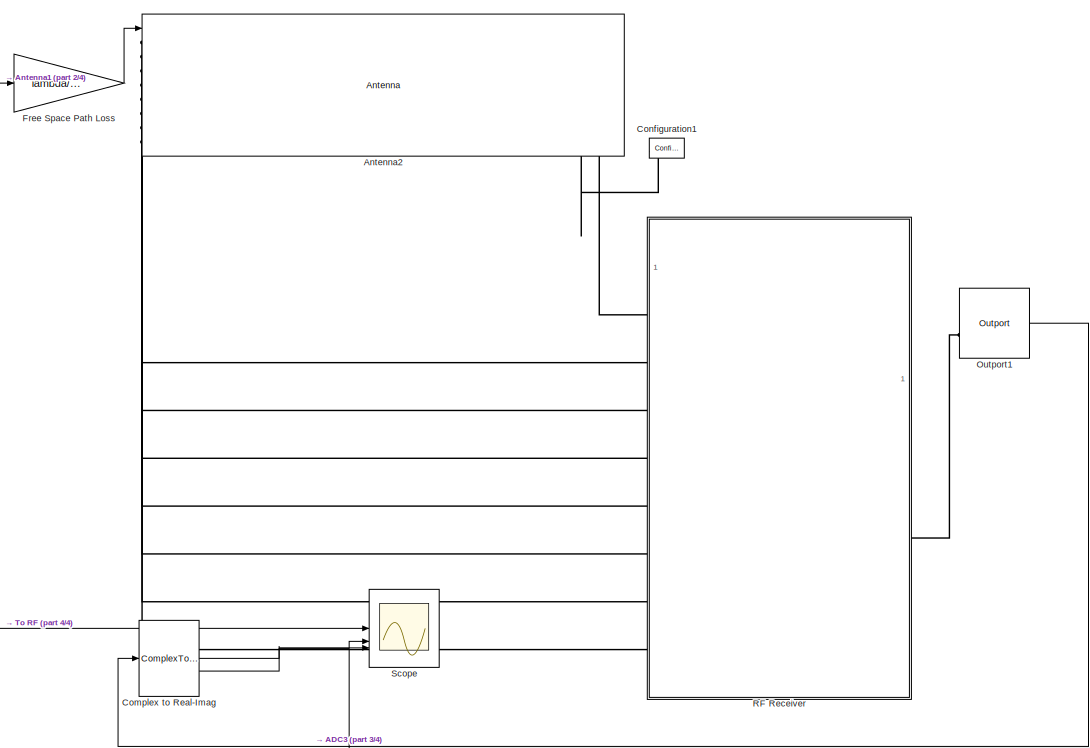
[diagram: root canvas - part 1/4, center side, full height]
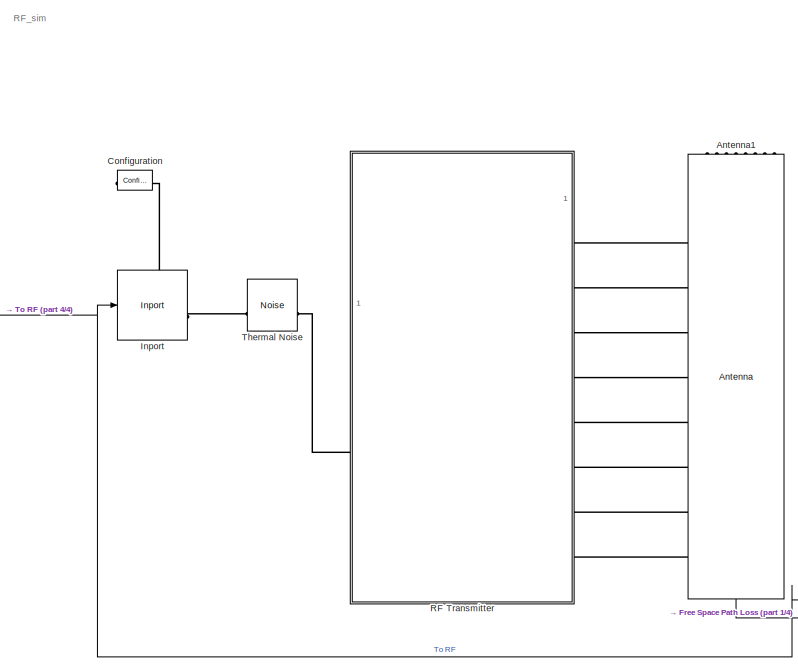
[diagram: root canvas - part 2/4, left side, full height]
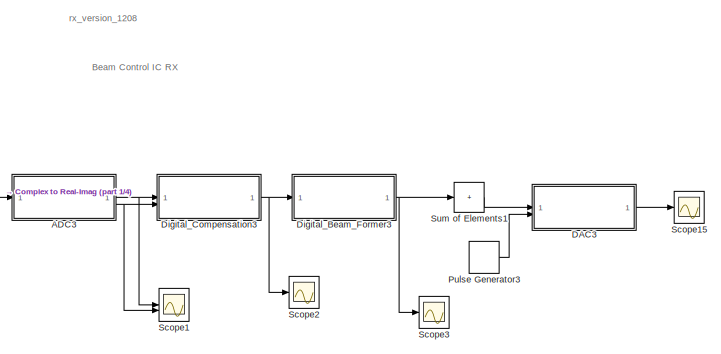
[diagram: root canvas - part 3/4, middle right region]
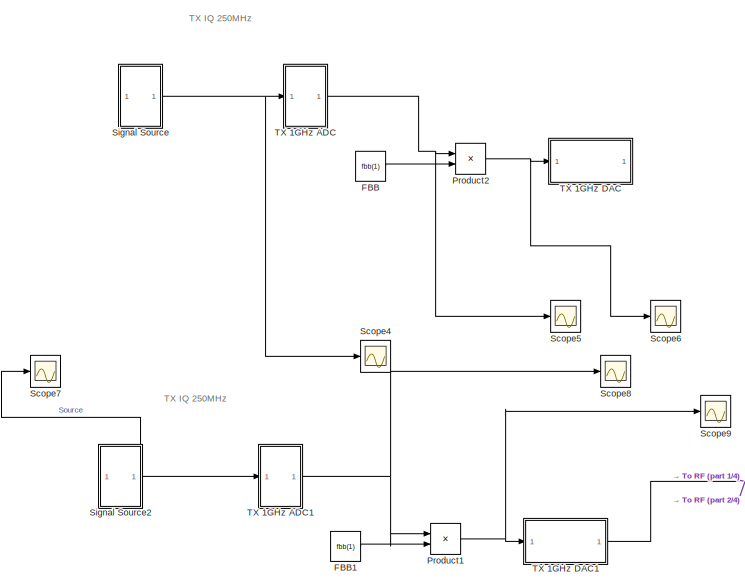
[diagram: root canvas - part 4/4, middle left region]
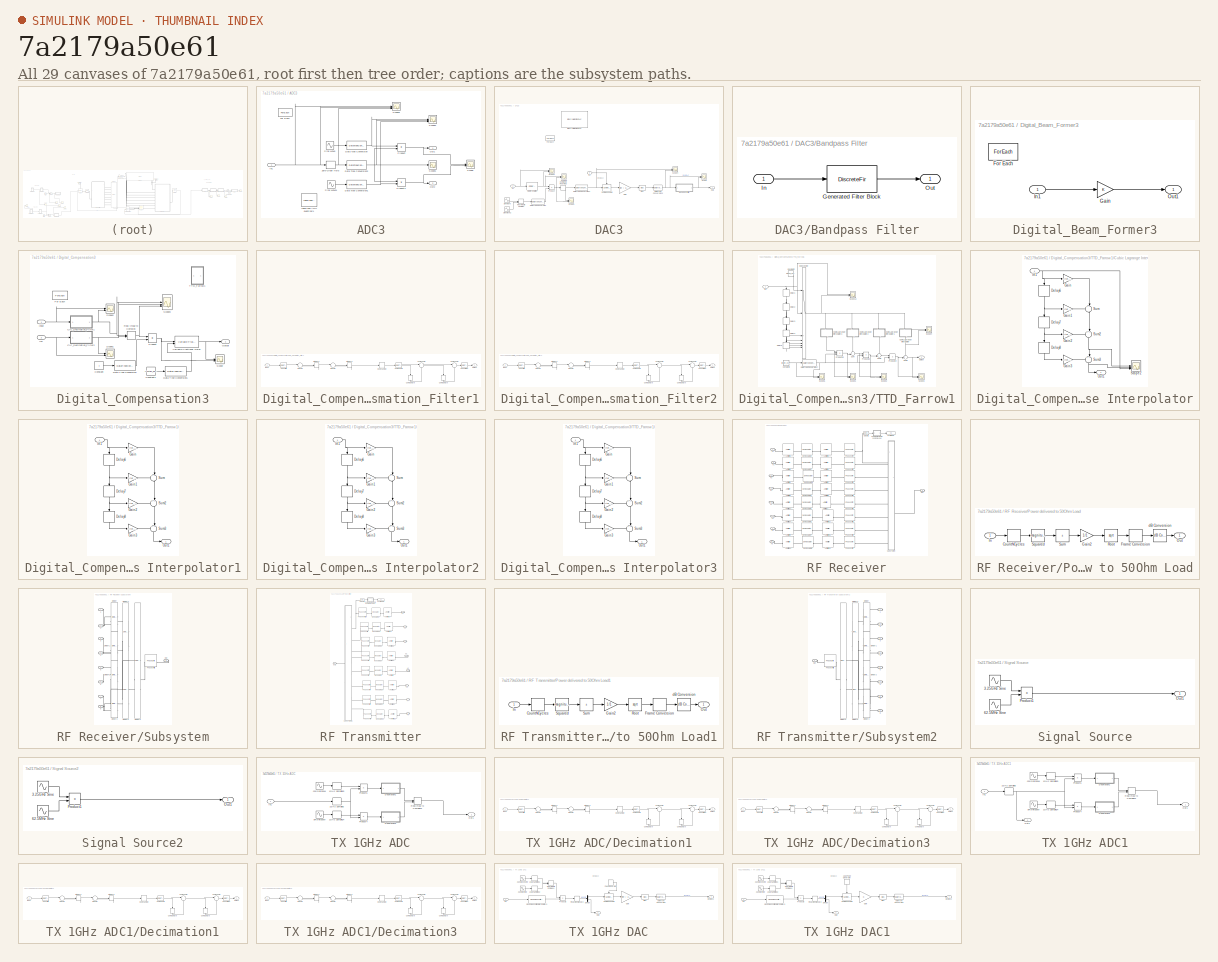
[diagram: thumbnail index - all 29 canvases of the model, root first then tree order]
MODEL slx_7a2179a50e61
KIND model
CONFIG AbsTol = auto
CONFIG EnableMultiTasking = off
CONFIG FixedStep = auto
CONFIG MaxStep = auto
CONFIG MinStep = auto
CONFIG PreLoadFcn = % Init values just to make sure that the model is loaded correctly when\n% not run within example script:\nRXexists = exist('arrayRXObj','var');\nTXexists = exist('arrayTXObj','var');\n\nif ~(RXexists && TXexists)\n    CF = 35e9; % Center frequency (Hz)\n    lambda = physconst('lightspeed')/CF; % Wavelength (1/m)\n    d = 100*lambda; % Distance between TX and RX antennas (m)\n    PL = 20*log10(4*pi*d/lambd...<+2127ch>
CONFIG RelTol = 1e-3
CONFIG SampleTimeConstraint = Unconstrained
CONFIG SolverName = FixedStepDiscrete
CONFIG StartTime = 1e-8
CONFIG StopTime = 1e-7
BLOCK [SubSystem] ADC3
  TreatAsAtomicUnit = on
BLOCK [DataTypeConversion] ADC3/Data Type Conversion
  OutDataTypeStr = fixdt(1,16,6)
  OutMax = 1
  OutMin = -1
  RndMeth = Floor
  SaturateOnIntegerOverflow = off
BLOCK [DataTypeConversion] ADC3/Data Type Conversion1
  OutDataTypeStr = fixdt(1,16,6)
  OutMax = 1
  OutMin = -1
  RndMeth = Floor
  SaturateOnIntegerOverflow = off
BLOCK [DataTypeConversion] ADC3/Data Type Conversion2
  OutDataTypeStr = fixdt(1,16,15)
  OutMax = 0.9
  OutMin = -1
  RndMeth = Floor
  SaturateOnIntegerOverflow = off
BLOCK [ForEach] ADC3/For Each
  DisableCoverage = on
  NameLocation = top
BLOCK [Reference] ADC3/Idealized ADC quantizer1  REF=simulink_extras/Additional
Discrete/Idealized ADC quantizer
  AttributesFormatString = (settings: %<NumberOfConverterBits>-bit converter\nVmin: %<Vmin>, Vmax: %<Vmax>)
  Commented = on
  SourceBlock = simulink_extras/Additional\nDiscrete/Idealized ADC quantizer
  SourceType = IdealADC
BLOCK [Inport] ADC3/In1
  Partition = on
  PartitionDimension = 1
  PartitionOffset = 0
  PartitionWidth = 1
BLOCK [Outport] ADC3/Out1
  ConcatenationDimension = 1
BLOCK [Outport] ADC3/Out2
  ConcatenationDimension = 1
  Port = 2
BLOCK [Product] ADC3/Product
BLOCK [Product] ADC3/Product1
BLOCK [Scope] ADC3/Scope
  Floating = off
  NumInputPorts = 2
  ScopeSpecificationString = Simulink.scopes.TimeScopeBlockCfg('CurrentConfiguration', extmgr.ConfigurationSet(extmgr.Configuration('Core','General UI',true),extmgr.Configuration('Core','Source UI',true),extmgr.Configuration('Sources','WiredSimulink',true,'DataLoggingVariableName','ScopeData5'),extmgr.Configuration('Visuals','Time Domain',true,'SerializedDisplays',{struct('MinYLimReal','-0.00001','MaxYLimReal','0.0001','YLabe...<+2073ch>
BLOCK [Scope] ADC3/Scope1
  Floating = off
  NumInputPorts = 1
  ScopeSpecificationString = Simulink.scopes.TimeScopeBlockCfg('CurrentConfiguration', extmgr.ConfigurationSet(extmgr.Configuration('Core','General UI',true),extmgr.Configuration('Core','Source UI',true),extmgr.Configuration('Sources','WiredSimulink',true,'DataLoggingVariableName','ScopeData6'),extmgr.Configuration('Visuals','Time Domain',true,'SerializedDisplays',{struct('MinYLimReal','-0.00011','MaxYLimReal','0.00008','YLab...<+1415ch>
BLOCK [Scope] ADC3/Scope2
  Floating = off
  NumInputPorts = 3
  ScopeSpecificationString = Simulink.scopes.TimeScopeBlockCfg('CurrentConfiguration', extmgr.ConfigurationSet(extmgr.Configuration('Core','General UI',true),extmgr.Configuration('Core','Source UI',true),extmgr.Configuration('Sources','WiredSimulink',true,'DataLoggingVariableName','ScopeData14'),extmgr.Configuration('Visuals','Time Domain',true,'SerializedDisplays',{struct('MinYLimReal','-1.24805','MaxYLimReal','1.23242','YLa...<+2866ch>
BLOCK [Scope] ADC3/Scope3
  Floating = off
  NumInputPorts = 3
  ScopeSpecificationString = Simulink.scopes.TimeScopeBlockCfg('CurrentConfiguration', extmgr.ConfigurationSet(extmgr.Configuration('Core','General UI',true),extmgr.Configuration('Core','Source UI',true),extmgr.Configuration('Sources','WiredSimulink',true,'DataLoggingVariableName','ScopeData9'),extmgr.Configuration('Visuals','Time Domain',true,'SerializedDisplays',{struct('MinYLimReal','-0.00000019','MaxYLimReal','0.00000005'...<+2840ch>
BLOCK [Sin] ADC3/Sine Wave
  Frequency = 2*pi*250e6
  Phase = 1.57
  SampleTime = 1/1e9
BLOCK [Sin] ADC3/Sine Wave1
  Frequency = 2*pi*250e6
  SampleTime = 1/1e9
BLOCK [ZeroOrderHold] ADC3/Zero-Order Hold
  SampleTime = 1/1e9
BLOCK [Reference] Antenna1  REF=simrfV2elements/Antenna
  NameLocation = left
  SourceBlock = simrfV2elements/Antenna
  SourceType = Antenna
  UserDataPersistent = on
BLOCK [Reference] Antenna2  REF=simrfV2elements/Antenna
  SourceBlock = simrfV2elements/Antenna
  SourceType = Antenna
  UserDataPersistent = on
BLOCK [ComplexToRealImag] Complex to Real-Imag
BLOCK [Reference] Configuration  REF=simrfV2util1/Configuration
  SourceBlock = simrfV2util1/Configuration
  SourceType = Configuration
BLOCK [Reference] Configuration1  REF=simrfV2util1/Configuration
  SourceBlock = simrfV2util1/Configuration
  SourceType = Configuration
BLOCK [SubSystem] DAC3
  TreatAsAtomicUnit = on
BLOCK [SubSystem] DAC3/Bandpass Filter
  CopyFcn = fdesignblkfcn(gcbh, {'CopyFcn'});
  DialogController = fdesignblkfcn
  InitFcn = fdesignblkfcn(gcbh, {'InitFcn'});
  UserDataPersistent = on
BLOCK [DiscreteFir] DAC3/Bandpass Filter/Generated Filter Block
  Coefficients = [-0.0012202546535986633 -9.13233975483025251e-05 -8.99256829754729333e-05 -8.49568620794835549e-05 -7.65918257031633398e-05 -6.45471094074958436e-05 -4.91277813323744229e-05 -3.02130898541779958e-05 -8.26870645732186759e-06 1.66716626986280563e-05 4.39541890279760312e-05 7.34165310252361835e-05 0.000104233965037176028 0.000136131752137670263 0.000168143983641900102 0.000199929301866811932 0.000230...<+11373ch>
  InputPortMap = u0
  InputProcessing = Columns as channels (frame based)
  OutputPortMap = o0
  Tag = BlockMethodSubSystem
BLOCK [Inport] DAC3/Bandpass Filter/In
BLOCK [Outport] DAC3/Bandpass Filter/Out
  VectorParamsAs1DForOutWhenUnconnected = off
BLOCK [Bias] DAC3/Bias
  Bias = Bias
  SaturateOnIntegerOverflow = off
BLOCK [Reference] DAC3/Binary Weighted DAC  REF=msbDacArchitectures/Binary Weighted DAC
  Commented = on
  NameLocation = top
  SourceBlock = msbDacArchitectures/Binary Weighted DAC
  SourceType = Binary Weighted DAC
BLOCK [Reference] DAC3/CIC Interpolation  REF=dspmlti4/CIC
Interpolation
  LibrarySourceBlock = dsphdlsupportfiltering/CIC\nInterpolation
  SourceBlock = dspmlti4/CIC\nInterpolation
  SourceType = CIC Interpolation
  UserDataPersistent = on
BLOCK [ComplexToRealImag] DAC3/Complex to Real-Imag
  Output = Real
BLOCK [DataTypeConversion] DAC3/Data Type Conversion
  OutDataTypeStr = fixdt(1,16,6)
  RndMeth = Floor
  SaturateOnIntegerOverflow = off
BLOCK [DataTypeConversion] DAC3/Data Type Conversion1
  OutDataTypeStr = double
  RndMeth = Floor
  SaturateOnIntegerOverflow = off
BLOCK [DataTypeConversion] DAC3/Data Type Conversion2
  OutDataTypeStr = double
  RndMeth = Floor
  SaturateOnIntegerOverflow = off
BLOCK [ForEach] DAC3/For Each
  DisableCoverage = on
BLOCK [Gain] DAC3/Gain
  Gain = Ref / 2^N
BLOCK [Inport] DAC3/In1
  Partition = on
  PartitionDimension = 1
  PartitionOffset = 0
  PartitionWidth = 1
BLOCK [Inport] DAC3/In2
  Partition = on
  PartitionDimension = 1
  PartitionOffset = 0
  PartitionWidth = 1
  Port = 2
BLOCK [Outport] DAC3/Out1
  ConcatenationDimension = 1
BLOCK [Product] DAC3/Product
BLOCK [RealImagToComplex] DAC3/Real-Imag to Complex
BLOCK [Reference] DAC3/Sample and Hold  REF=dspsigops/Sample
and Hold
  SourceBlock = dspsigops/Sample\nand Hold
  SourceType = Sample and Hold
BLOCK [Scope] DAC3/Scope
  Floating = off
  NumInputPorts = 2
  ScopeSpecificationString = Simulink.scopes.TimeScopeBlockCfg('CurrentConfiguration', extmgr.ConfigurationSet(extmgr.Configuration('Core','General UI',true),extmgr.Configuration('Core','Source UI',true),extmgr.Configuration('Sources','WiredSimulink',true,'DataLoggingVariableName','ScopeData2'),extmgr.Configuration('Visuals','Time Domain',true,'SerializedDisplays',{struct('MinYLimReal','-0.0000006','MaxYLimReal','0.0000006','...<+2054ch>
BLOCK [Scope] DAC3/Scope1
  Floating = off
  NumInputPorts = 2
  ScopeSpecificationString = Simulink.scopes.TimeScopeBlockCfg('CurrentConfiguration', extmgr.ConfigurationSet(extmgr.Configuration('Core','General UI',true),extmgr.Configuration('Core','Source UI',true),extmgr.Configuration('Sources','WiredSimulink',true,'DataLoggingVariableName','ScopeData3'),extmgr.Configuration('Visuals','Time Domain',true,'SerializedDisplays',{struct('MinYLimReal','-0.039','MaxYLimReal','0.03851','YLabel...<+2114ch>
BLOCK [Scope] DAC3/Scope2
  Floating = off
  NumInputPorts = 2
  ScopeSpecificationString = Simulink.scopes.TimeScopeBlockCfg('CurrentConfiguration', extmgr.ConfigurationSet(extmgr.Configuration('Core','General UI',true),extmgr.Configuration('Core','Source UI',true),extmgr.Configuration('Sources','WiredSimulink',true,'DataLoggingVariableName','ScopeData4'),extmgr.Configuration('Visuals','Time Domain',true,'SerializedDisplays',{struct('MinYLimReal','-0.01939','MaxYLimReal','0.01952','YLab...<+2144ch>
BLOCK [Scope] DAC3/Scope3
  Floating = off
  NumInputPorts = 2
  ScopeSpecificationString = Simulink.scopes.TimeScopeBlockCfg('CurrentConfiguration', extmgr.ConfigurationSet(extmgr.Configuration('Core','General UI',true),extmgr.Configuration('Core','Source UI',true),extmgr.Configuration('Sources','WiredSimulink',true,'DataLoggingVariableName','ScopeData8'),extmgr.Configuration('Visuals','Time Domain',true,'SerializedDisplays',{struct('MinYLimReal','-0.03879','MaxYLimReal','0.03903','YLab...<+2078ch>
BLOCK [Scope] DAC3/Scope4
  Floating = off
  NumInputPorts = 2
  ScopeSpecificationString = Simulink.scopes.TimeScopeBlockCfg('CurrentConfiguration', extmgr.ConfigurationSet(extmgr.Configuration('Core','General UI',true),extmgr.Configuration('Core','Source UI',true),extmgr.Configuration('Sources','WiredSimulink',true,'DataLoggingVariableName','ScopeData12'),extmgr.Configuration('Visuals','Time Domain',true,'SerializedDisplays',{struct('MinYLimReal','-0.00017','MaxYLimReal','0.00029','YLa...<+2155ch>
BLOCK [Sin] DAC3/Sine Wave
  Frequency = 2*pi*250e6
  Phase = 1.57
  SampleTime = 1/1e9
BLOCK [Sin] DAC3/Sine Wave2
  Frequency = 2*pi*250e6
  SampleTime = 1/1e9
BLOCK [SubSystem] Digital_Beam_Former3
  TreatAsAtomicUnit = on
BLOCK [ForEach] Digital_Beam_Former3/For Each
  DisableCoverage = on
BLOCK [Gain] Digital_Beam_Former3/Gain
  NameLocation = top
  OutDataTypeStr = Inherit: Same as input
BLOCK [Inport] Digital_Beam_Former3/In1
  Partition = on
  PartitionDimension = 1
  PartitionOffset = 0
  PartitionWidth = 1
BLOCK [Outport] Digital_Beam_Former3/Out1
  ConcatenationDimension = 1
BLOCK [SubSystem] Digital_Compensation3
  TreatAsAtomicUnit = on
BLOCK [SubSystem] Digital_Compensation3/CIC_Decimation_Filter1
  ErrorFcn = dspFilterRealizedInBasicElemsAlgLoopErrFcnCallback
  Tag = FilterWizardSubSystem
  UserDataPersistent = on
BLOCK [DataTypeConversion] Digital_Compensation3/CIC_Decimation_Filter1/CombCast5
  OutDataTypeStr = fixdt(1,34,15)
  RndMeth = Floor
  SaturateOnIntegerOverflow = off
BLOCK [Delay] Digital_Compensation3/CIC_Decimation_Filter1/CombDelay5
  DelayLength = 1
  InitialCondition = 0
  InputPortMap = u0
  NameLocation = right
BLOCK [Delay] Digital_Compensation3/CIC_Decimation_Filter1/CombDelay6
  DelayLength = 1
  InitialCondition = 0
  InputPortMap = u0
  NameLocation = right
BLOCK [Sum] Digital_Compensation3/CIC_Decimation_Filter1/CombSum5
  AccumDataTypeStr = fixdt(1,34,15)
  Inputs = |+-
  OutDataTypeStr = fixdt(1,34,15)
BLOCK [Sum] Digital_Compensation3/CIC_Decimation_Filter1/CombSum6
  AccumDataTypeStr = fixdt(1,34,15)
  Inputs = |+-
  OutDataTypeStr = fixdt(1,34,15)
BLOCK [DataTypeConversion] Digital_Compensation3/CIC_Decimation_Filter1/ConvertIn
  OutDataTypeStr = fixdt(1,32,15)
  RndMeth = Nearest
BLOCK [DataTypeConversion] Digital_Compensation3/CIC_Decimation_Filter1/ConvertOut
  OutDataTypeStr = fixdt(1,32,13)
  RndMeth = Floor
  SaturateOnIntegerOverflow = off
BLOCK [DownSample] Digital_Compensation3/CIC_Decimation_Filter1/Down Sample
  AllowArbitraryFixedInput = on
  InputProcessing = Elements as channels (sample based)
  RateOptions = Allow multirate processing
BLOCK [Inport] Digital_Compensation3/CIC_Decimation_Filter1/Input
BLOCK [Delay] Digital_Compensation3/CIC_Decimation_Filter1/IntDelay2
  DelayLength = 1
  InitialCondition = 0
  InputPortMap = u0
BLOCK [Delay] Digital_Compensation3/CIC_Decimation_Filter1/IntDelay3
  DelayLength = 1
  InitialCondition = 0
  InputPortMap = u0
BLOCK [Sum] Digital_Compensation3/CIC_Decimation_Filter1/IntSum2
  AccumDataTypeStr = fixdt(1,34,15)
  Inputs = |++
  OutDataTypeStr = fixdt(1,34,15)
BLOCK [Sum] Digital_Compensation3/CIC_Decimation_Filter1/IntSum3
  AccumDataTypeStr = fixdt(1,34,15)
  Inputs = |++
  OutDataTypeStr = fixdt(1,34,15)
BLOCK [Outport] Digital_Compensation3/CIC_Decimation_Filter1/Output
BLOCK [SubSystem] Digital_Compensation3/CIC_Decimation_Filter2
  ErrorFcn = dspFilterRealizedInBasicElemsAlgLoopErrFcnCallback
  Tag = FilterWizardSubSystem
  UserDataPersistent = on
BLOCK [DataTypeConversion] Digital_Compensation3/CIC_Decimation_Filter2/CombCast5
  OutDataTypeStr = fixdt(1,34,15)
  RndMeth = Floor
  SaturateOnIntegerOverflow = off
BLOCK [Delay] Digital_Compensation3/CIC_Decimation_Filter2/CombDelay5
  DelayLength = 1
  InitialCondition = 0
  InputPortMap = u0
  NameLocation = right
BLOCK [Delay] Digital_Compensation3/CIC_Decimation_Filter2/CombDelay6
  DelayLength = 1
  InitialCondition = 0
  InputPortMap = u0
  NameLocation = right
BLOCK [Sum] Digital_Compensation3/CIC_Decimation_Filter2/CombSum5
  AccumDataTypeStr = fixdt(1,34,15)
  Inputs = |+-
  OutDataTypeStr = fixdt(1,34,15)
BLOCK [Sum] Digital_Compensation3/CIC_Decimation_Filter2/CombSum6
  AccumDataTypeStr = fixdt(1,34,15)
  Inputs = |+-
  OutDataTypeStr = fixdt(1,34,15)
BLOCK [DataTypeConversion] Digital_Compensation3/CIC_Decimation_Filter2/ConvertIn
  OutDataTypeStr = fixdt(1,32,15)
  RndMeth = Nearest
BLOCK [DataTypeConversion] Digital_Compensation3/CIC_Decimation_Filter2/ConvertOut
  OutDataTypeStr = fixdt(1,32,13)
  RndMeth = Floor
  SaturateOnIntegerOverflow = off
BLOCK [DownSample] Digital_Compensation3/CIC_Decimation_Filter2/Down Sample
  AllowArbitraryFixedInput = on
  InputProcessing = Elements as channels (sample based)
  RateOptions = Allow multirate processing
BLOCK [Inport] Digital_Compensation3/CIC_Decimation_Filter2/Input
BLOCK [Delay] Digital_Compensation3/CIC_Decimation_Filter2/IntDelay2
  DelayLength = 1
  InitialCondition = 0
  InputPortMap = u0
BLOCK [Delay] Digital_Compensation3/CIC_Decimation_Filter2/IntDelay3
  DelayLength = 1
  InitialCondition = 0
  InputPortMap = u0
BLOCK [Sum] Digital_Compensation3/CIC_Decimation_Filter2/IntSum2
  AccumDataTypeStr = fixdt(1,34,15)
  Inputs = |++
  OutDataTypeStr = fixdt(1,34,15)
BLOCK [Sum] Digital_Compensation3/CIC_Decimation_Filter2/IntSum3
  AccumDataTypeStr = fixdt(1,34,15)
  Inputs = |++
  OutDataTypeStr = fixdt(1,34,15)
BLOCK [Outport] Digital_Compensation3/CIC_Decimation_Filter2/Output
BLOCK [Constant] Digital_Compensation3/Constant
BLOCK [Constant] Digital_Compensation3/Constant1
  Value = fraction_delay
BLOCK [DataTypeConversion] Digital_Compensation3/Data Type Conversion
  OutDataTypeStr = fixdt(1,16,0)
  RndMeth = Floor
  SaturateOnIntegerOverflow = off
BLOCK [DataTypeConversion] Digital_Compensation3/Data Type Conversion1
  OutDataTypeStr = fixdt(1,8,6)
  RndMeth = Floor
  SaturateOnIntegerOverflow = off
BLOCK [ForEach] Digital_Compensation3/For Each
  DisableCoverage = on
BLOCK [Inport] Digital_Compensation3/In2
  Partition = on
  PartitionDimension = 1
  PartitionOffset = 0
  PartitionWidth = 1
  Port = 2
BLOCK [Inport] Digital_Compensation3/Input
  Partition = on
  PartitionDimension = 1
  PartitionOffset = 0
  PartitionWidth = 1
BLOCK [Outport] Digital_Compensation3/Output
  ConcatenationDimension = 1
BLOCK [Product] Digital_Compensation3/Product
BLOCK [RealImagToComplex] Digital_Compensation3/Real-Imag to Complex
BLOCK [Scope] Digital_Compensation3/Scope
  Floating = off
  NumInputPorts = 2
  ScopeSpecificationString = Simulink.scopes.TimeScopeBlockCfg('CurrentConfiguration', extmgr.ConfigurationSet(extmgr.Configuration('Core','General UI',true),extmgr.Configuration('Core','Source UI',true),extmgr.Configuration('Sources','WiredSimulink',true,'DataLoggingVariableName','ScopeData1'),extmgr.Configuration('Visuals','Time Domain',true,'SerializedDisplays',{struct('MinYLimReal','-0.00015','MaxYLimReal','0.00015','YLab...<+2176ch>
BLOCK [Scope] Digital_Compensation3/Scope1
  Floating = off
  NumInputPorts = 2
  ScopeSpecificationString = Simulink.scopes.TimeScopeBlockCfg('CurrentConfiguration', extmgr.ConfigurationSet(extmgr.Configuration('Core','General UI',true),extmgr.Configuration('Core','Source UI',true),extmgr.Configuration('Sources','WiredSimulink',true,'DataLoggingVariableName','ScopeData13'),extmgr.Configuration('Visuals','Time Domain',true,'SerializedDisplays',{struct('MinYLimReal','-0.00014','MaxYLimReal','0.00002','YLa...<+2100ch>
BLOCK [Scope] Digital_Compensation3/Scope2
  Floating = off
  NumInputPorts = 2
  ScopeSpecificationString = Simulink.scopes.TimeScopeBlockCfg('CurrentConfiguration', extmgr.ConfigurationSet(extmgr.Configuration('Core','General UI',true),extmgr.Configuration('Core','Source UI',true),extmgr.Configuration('Sources','WiredSimulink',true,'DataLoggingVariableName','ScopeData10'),extmgr.Configuration('Visuals','Time Domain',true,'SerializedDisplays',{struct('MinYLimReal','-0.00001','MaxYLimReal','0.0001','YLab...<+2120ch>
BLOCK [Scope] Digital_Compensation3/Scope3
  Floating = off
  NumInputPorts = 3
  ScopeSpecificationString = Simulink.scopes.TimeScopeBlockCfg('CurrentConfiguration', extmgr.ConfigurationSet(extmgr.Configuration('Core','General UI',true),extmgr.Configuration('Core','Source UI',true),extmgr.Configuration('Sources','WiredSimulink',true,'DataLoggingVariableName','ScopeData11'),extmgr.Configuration('Visuals','Time Domain',true,'SerializedDisplays',{struct('MinYLimReal','-0.00002','MaxYLimReal','0.00014','YLa...<+2889ch>
BLOCK [SubSystem] Digital_Compensation3/TTD_Farrow1
  Commented = on
BLOCK [Constant] Digital_Compensation3/TTD_Farrow1/Constant2
  Value = integer_delay
BLOCK [Constant] Digital_Compensation3/TTD_Farrow1/Constant3
  Value = fraction_delay
BLOCK [SubSystem] Digital_Compensation3/TTD_Farrow1/Cubic Lagrange Interpolator
  NameLocation = left
BLOCK [Delay] Digital_Compensation3/TTD_Farrow1/Cubic Lagrange Interpolator/Delay6
  DelayLength = 1
  InputPortMap = u0
  NameLocation = left
BLOCK [Delay] Digital_Compensation3/TTD_Farrow1/Cubic Lagrange Interpolator/Delay7
  DelayLength = 1
  InputPortMap = u0
  NameLocation = left
BLOCK [Delay] Digital_Compensation3/TTD_Farrow1/Cubic Lagrange Interpolator/Delay8
  DelayLength = 1
  InputPortMap = u0
  NameLocation = left
BLOCK [Gain] Digital_Compensation3/TTD_Farrow1/Cubic Lagrange Interpolator/Gain
  Gain = filter_gain0_3
BLOCK [Gain] Digital_Compensation3/TTD_Farrow1/Cubic Lagrange Interpolator/Gain1
  Gain = filter_gain0_2
BLOCK [Gain] Digital_Compensation3/TTD_Farrow1/Cubic Lagrange Interpolator/Gain2
  Gain = filter_gain0_1
BLOCK [Gain] Digital_Compensation3/TTD_Farrow1/Cubic Lagrange Interpolator/Gain3
  Gain = filter_gain0_0
BLOCK [Inport] Digital_Compensation3/TTD_Farrow1/Cubic Lagrange Interpolator/In1
BLOCK [Outport] Digital_Compensation3/TTD_Farrow1/Cubic Lagrange Interpolator/Out1
BLOCK [Scope] Digital_Compensation3/TTD_Farrow1/Cubic Lagrange Interpolator/Scope2
  Floating = off
  NumInputPorts = 3
  ScopeSpecificationString = Simulink.scopes.TimeScopeBlockCfg('CurrentConfiguration', extmgr.ConfigurationSet(extmgr.Configuration('Core','General UI',true),extmgr.Configuration('Core','Source UI',true),extmgr.Configuration('Sources','WiredSimulink',true,'DataLoggingVariableName','ScopeData13'),extmgr.Configuration('Visuals','Time Domain',true,'SerializedDisplays',{struct('MinYLimReal','-0.125','MaxYLimReal','1.125','YLabelR...<+3111ch>
BLOCK [Sum] Digital_Compensation3/TTD_Farrow1/Cubic Lagrange Interpolator/Sum
  Inputs = ++|
  NameLocation = left
BLOCK [Sum] Digital_Compensation3/TTD_Farrow1/Cubic Lagrange Interpolator/Sum2
  Inputs = ++|
  NameLocation = left
BLOCK [Sum] Digital_Compensation3/TTD_Farrow1/Cubic Lagrange Interpolator/Sum3
  Inputs = ++|
  NameLocation = left
BLOCK [SubSystem] Digital_Compensation3/TTD_Farrow1/Cubic Lagrange Interpolator1
  NameLocation = left
BLOCK [Delay] Digital_Compensation3/TTD_Farrow1/Cubic Lagrange Interpolator1/Delay6
  DelayLength = 1
  InputPortMap = u0
  NameLocation = left
BLOCK [Delay] Digital_Compensation3/TTD_Farrow1/Cubic Lagrange Interpolator1/Delay7
  DelayLength = 1
  InputPortMap = u0
  NameLocation = left
BLOCK [Delay] Digital_Compensation3/TTD_Farrow1/Cubic Lagrange Interpolator1/Delay8
  DelayLength = 1
  InputPortMap = u0
  NameLocation = left
BLOCK [Gain] Digital_Compensation3/TTD_Farrow1/Cubic Lagrange Interpolator1/Gain
  Gain = filter_gain1_3
BLOCK [Gain] Digital_Compensation3/TTD_Farrow1/Cubic Lagrange Interpolator1/Gain1
  Gain = filter_gain1_2
BLOCK [Gain] Digital_Compensation3/TTD_Farrow1/Cubic Lagrange Interpolator1/Gain2
  Gain = filter_gain1_1
BLOCK [Gain] Digital_Compensation3/TTD_Farrow1/Cubic Lagrange Interpolator1/Gain3
  Gain = filter_gain1_0
BLOCK [Inport] Digital_Compensation3/TTD_Farrow1/Cubic Lagrange Interpolator1/In1
BLOCK [Outport] Digital_Compensation3/TTD_Farrow1/Cubic Lagrange Interpolator1/Out1
BLOCK [Sum] Digital_Compensation3/TTD_Farrow1/Cubic Lagrange Interpolator1/Sum
  Inputs = ++|
  NameLocation = left
BLOCK [Sum] Digital_Compensation3/TTD_Farrow1/Cubic Lagrange Interpolator1/Sum2
  Inputs = ++|
  NameLocation = left
BLOCK [Sum] Digital_Compensation3/TTD_Farrow1/Cubic Lagrange Interpolator1/Sum3
  Inputs = ++|
  NameLocation = left
BLOCK [SubSystem] Digital_Compensation3/TTD_Farrow1/Cubic Lagrange Interpolator2
  NameLocation = left
BLOCK [Delay] Digital_Compensation3/TTD_Farrow1/Cubic Lagrange Interpolator2/Delay6
  DelayLength = 1
  InputPortMap = u0
  NameLocation = left
BLOCK [Delay] Digital_Compensation3/TTD_Farrow1/Cubic Lagrange Interpolator2/Delay7
  DelayLength = 1
  InputPortMap = u0
  NameLocation = left
BLOCK [Delay] Digital_Compensation3/TTD_Farrow1/Cubic Lagrange Interpolator2/Delay8
  DelayLength = 1
  InputPortMap = u0
  NameLocation = left
BLOCK [Gain] Digital_Compensation3/TTD_Farrow1/Cubic Lagrange Interpolator2/Gain
  Gain = filter_gain2_3
BLOCK [Gain] Digital_Compensation3/TTD_Farrow1/Cubic Lagrange Interpolator2/Gain1
  Gain = filter_gain2_2
BLOCK [Gain] Digital_Compensation3/TTD_Farrow1/Cubic Lagrange Interpolator2/Gain2
  Gain = filter_gain2_1
BLOCK [Gain] Digital_Compensation3/TTD_Farrow1/Cubic Lagrange Interpolator2/Gain3
  Gain = filter_gain2_0
BLOCK [Inport] Digital_Compensation3/TTD_Farrow1/Cubic Lagrange Interpolator2/In1
BLOCK [Outport] Digital_Compensation3/TTD_Farrow1/Cubic Lagrange Interpolator2/Out1
BLOCK [Sum] Digital_Compensation3/TTD_Farrow1/Cubic Lagrange Interpolator2/Sum
  Inputs = ++|
  NameLocation = left
BLOCK [Sum] Digital_Compensation3/TTD_Farrow1/Cubic Lagrange Interpolator2/Sum2
  Inputs = ++|
  NameLocation = left
BLOCK [Sum] Digital_Compensation3/TTD_Farrow1/Cubic Lagrange Interpolator2/Sum3
  Inputs = ++|
  NameLocation = left
BLOCK [SubSystem] Digital_Compensation3/TTD_Farrow1/Cubic Lagrange Interpolator3
  NameLocation = left
BLOCK [Delay] Digital_Compensation3/TTD_Farrow1/Cubic Lagrange Interpolator3/Delay6
  DelayLength = 1
  InputPortMap = u0
  NameLocation = left
BLOCK [Delay] Digital_Compensation3/TTD_Farrow1/Cubic Lagrange Interpolator3/Delay7
  DelayLength = 1
  InputPortMap = u0
  NameLocation = left
BLOCK [Delay] Digital_Compensation3/TTD_Farrow1/Cubic Lagrange Interpolator3/Delay8
  DelayLength = 1
  InputPortMap = u0
  NameLocation = left
BLOCK [Gain] Digital_Compensation3/TTD_Farrow1/Cubic Lagrange Interpolator3/Gain
  Gain = filter_gain3_3
BLOCK [Gain] Digital_Compensation3/TTD_Farrow1/Cubic Lagrange Interpolator3/Gain1
  Gain = filter_gain3_2
BLOCK [Gain] Digital_Compensation3/TTD_Farrow1/Cubic Lagrange Interpolator3/Gain2
  Gain = filter_gain3_1
BLOCK [Gain] Digital_Compensation3/TTD_Farrow1/Cubic Lagrange Interpolator3/Gain3
  Gain = filter_gain3_0
BLOCK [Inport] Digital_Compensation3/TTD_Farrow1/Cubic Lagrange Interpolator3/In1
BLOCK [Outport] Digital_Compensation3/TTD_Farrow1/Cubic Lagrange Interpolator3/Out1
BLOCK [Sum] Digital_Compensation3/TTD_Farrow1/Cubic Lagrange Interpolator3/Sum
  Inputs = ++|
  NameLocation = left
BLOCK [Sum] Digital_Compensation3/TTD_Farrow1/Cubic Lagrange Interpolator3/Sum2
  Inputs = ++|
  NameLocation = left
BLOCK [Sum] Digital_Compensation3/TTD_Farrow1/Cubic Lagrange Interpolator3/Sum3
  Inputs = ++|
  NameLocation = left
BLOCK [DataTypeConversion] Digital_Compensation3/TTD_Farrow1/Data Type Conversion7
  OutDataTypeStr = fixdt(1,16,6)
  RndMeth = Floor
  SaturateOnIntegerOverflow = off
BLOCK [Delay] Digital_Compensation3/TTD_Farrow1/Delay1
  DelayLength = 1
  InputPortMap = u0
  NameLocation = left
BLOCK [Delay] Digital_Compensation3/TTD_Farrow1/Delay2
  DelayLength = 1
  InputPortMap = u0
  NameLocation = left
BLOCK [Delay] Digital_Compensation3/TTD_Farrow1/Delay3
  DelayLength = 1
  InputPortMap = u0
  NameLocation = left
BLOCK [Delay] Digital_Compensation3/TTD_Farrow1/Delay4
  DelayLength = 1
  InputPortMap = u0
  NameLocation = left
BLOCK [Delay] Digital_Compensation3/TTD_Farrow1/Delay5
  DelayLength = 1
  InputPortMap = u0
  NameLocation = left
BLOCK [Inport] Digital_Compensation3/TTD_Farrow1/In1
BLOCK [MultiPortSwitch] Digital_Compensation3/TTD_Farrow1/Index Vector
  DataPortOrder = Zero-based contiguous
  InputSameDT = off
  Inputs = 6
  SaturateOnIntegerOverflow = off
  zeroidx = on
BLOCK [Outport] Digital_Compensation3/TTD_Farrow1/Output
BLOCK [Product] Digital_Compensation3/TTD_Farrow1/Product12
BLOCK [Product] Digital_Compensation3/TTD_Farrow1/Product13
BLOCK [Product] Digital_Compensation3/TTD_Farrow1/Product14
BLOCK [Scope] Digital_Compensation3/TTD_Farrow1/Scope1
  Floating = off
  NumInputPorts = 2
  ScopeSpecificationString = Simulink.scopes.TimeScopeBlockCfg('CurrentConfiguration', extmgr.ConfigurationSet(extmgr.Configuration('Core','General UI',true),extmgr.Configuration('Core','Source UI',true),extmgr.Configuration('Sources','WiredSimulink',true,'DataLoggingVariableName','ScopeData7'),extmgr.Configuration('Visuals','Time Domain',true,'SerializedDisplays',{struct('MinYLimReal','-0.125','MaxYLimReal','1.125','YLabelRe...<+2461ch>
BLOCK [Scope] Digital_Compensation3/TTD_Farrow1/Scope12
  Floating = off
  NumInputPorts = 2
  ScopeSpecificationString = Simulink.scopes.TimeScopeBlockCfg('CurrentConfiguration', extmgr.ConfigurationSet(extmgr.Configuration('Core','General UI',true),extmgr.Configuration('Core','Source UI',true),extmgr.Configuration('Sources','WiredSimulink',true,'DataLoggingVariableName','ScopeData6'),extmgr.Configuration('Visuals','Time Domain',true,'SerializedDisplays',{struct('MinYLimReal','-0.125','MaxYLimReal','1.125','YLabelRe...<+2439ch>
BLOCK [Scope] Digital_Compensation3/TTD_Farrow1/Scope2
  Floating = off
  NumInputPorts = 2
  ScopeSpecificationString = Simulink.scopes.TimeScopeBlockCfg('CurrentConfiguration', extmgr.ConfigurationSet(extmgr.Configuration('Core','General UI',true),extmgr.Configuration('Core','Source UI',true),extmgr.Configuration('Sources','WiredSimulink',true,'DataLoggingVariableName','ScopeData8'),extmgr.Configuration('Visuals','Time Domain',true,'SerializedDisplays',{struct('MinYLimReal','-0.125','MaxYLimReal','1.125','YLabelRe...<+2436ch>
BLOCK [Scope] Digital_Compensation3/TTD_Farrow1/Scope3
  Floating = off
  NumInputPorts = 2
  ScopeSpecificationString = Simulink.scopes.TimeScopeBlockCfg('CurrentConfiguration', extmgr.ConfigurationSet(extmgr.Configuration('Core','General UI',true),extmgr.Configuration('Core','Source UI',true),extmgr.Configuration('Sources','WiredSimulink',true,'DataLoggingVariableName','ScopeData9'),extmgr.Configuration('Visuals','Time Domain',true,'SerializedDisplays',{struct('MinYLimReal','-0.125','MaxYLimReal','1.125','YLabelRe...<+2439ch>
BLOCK [Scope] Digital_Compensation3/TTD_Farrow1/Scope4
  Floating = off
  NumInputPorts = 2
  ScopeSpecificationString = Simulink.scopes.TimeScopeBlockCfg('CurrentConfiguration', extmgr.ConfigurationSet(extmgr.Configuration('Core','General UI',true),extmgr.Configuration('Core','Source UI',true),extmgr.Configuration('Sources','WiredSimulink',true,'DataLoggingVariableName','ScopeData10'),extmgr.Configuration('Visuals','Time Domain',true,'SerializedDisplays',{struct('MinYLimReal','-0.125','MaxYLimReal','1.125','YLabelR...<+2466ch>
BLOCK [Scope] Digital_Compensation3/TTD_Farrow1/Scope5
  Floating = off
  NumInputPorts = 2
  ScopeSpecificationString = Simulink.scopes.TimeScopeBlockCfg('CurrentConfiguration', extmgr.ConfigurationSet(extmgr.Configuration('Core','General UI',true),extmgr.Configuration('Core','Source UI',true),extmgr.Configuration('Sources','WiredSimulink',true,'DataLoggingVariableName','ScopeData16'),extmgr.Configuration('Visuals','Time Domain',true,'SerializedDisplays',{struct('MinYLimReal','-0.125','MaxYLimReal','1.125','YLabelR...<+2525ch>
BLOCK [Sum] Digital_Compensation3/TTD_Farrow1/Sum
  Inputs = ++|
BLOCK [Sum] Digital_Compensation3/TTD_Farrow1/Sum2
  Inputs = ++|
BLOCK [Sum] Digital_Compensation3/TTD_Farrow1/Sum3
  Inputs = ++|
BLOCK [Reference] Digital_Compensation3/Variable Fractional Delay  REF=dspsigops/Variable
Fractional Delay
  SourceBlock = dspsigops/Variable\nFractional Delay
  SourceType = Variable Fractional Delay
  UserDataPersistent = on
BLOCK [Constant] FBB
  Commented = on
  Value = fbb(1)
BLOCK [Constant] FBB1
  Value = fbb(1)
BLOCK [Gain] Free Space Path Loss
  Gain = lambda/(4*pi*d)
BLOCK [Reference] Inport  REF=simrfV2util1/Inport
  SourceBlock = simrfV2util1/Inport
  SourceType = Inport
BLOCK [Reference] Outport1  REF=simrfV2util1/Outport
  SourceBlock = simrfV2util1/Outport
  SourceType = Outport
BLOCK [Product] Product1
BLOCK [Product] Product2
  Commented = on
BLOCK [DiscretePulseGenerator] Pulse Generator3
  Period = 1/1e9
  PulseType = Time based
  PulseWidth = 50
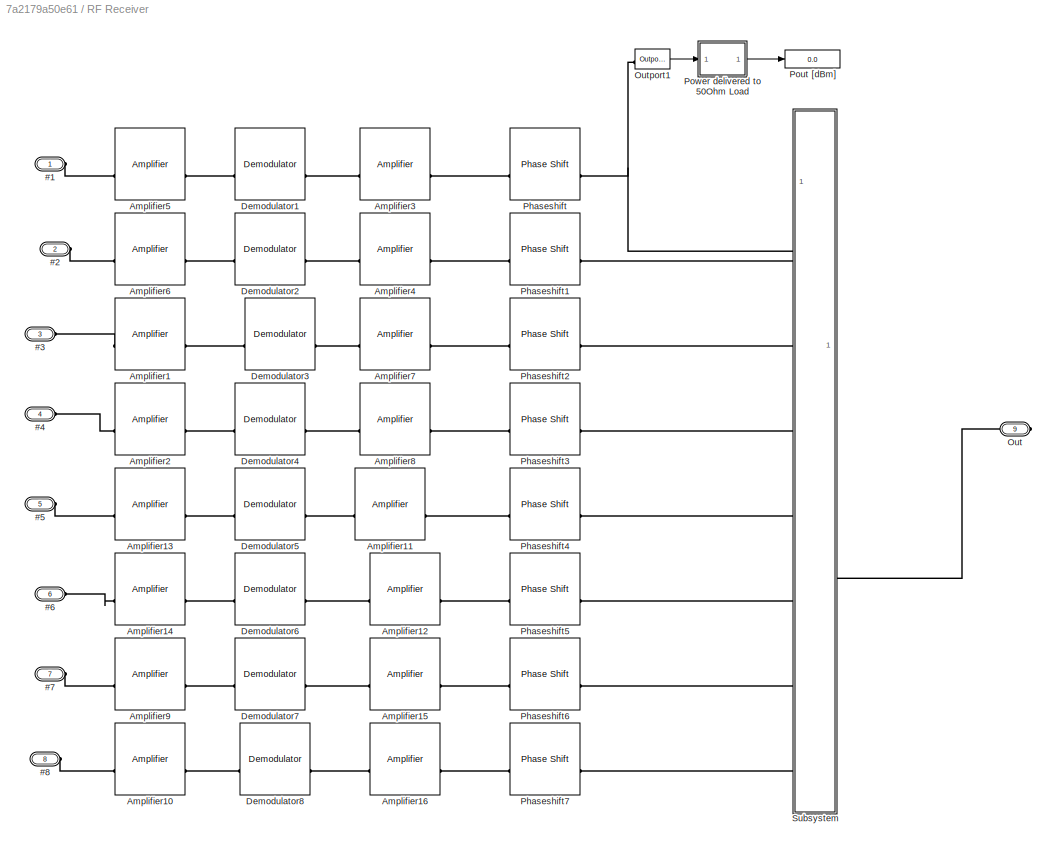
BLOCK [SubSystem] RF Receiver
BLOCK [PMIOPort] RF Receiver/#1
  NameLocation = top
  Side = Left
BLOCK [PMIOPort] RF Receiver/#2
  NameLocation = top
  Port = 2
  Side = Left
BLOCK [PMIOPort] RF Receiver/#3
  NameLocation = top
  Port = 3
  Side = Left
BLOCK [PMIOPort] RF Receiver/#4
  NameLocation = top
  Port = 4
  Side = Left
BLOCK [PMIOPort] RF Receiver/#5
  NameLocation = top
  Port = 5
  Side = Left
BLOCK [PMIOPort] RF Receiver/#6
  NameLocation = top
  Port = 6
  Side = Left
BLOCK [PMIOPort] RF Receiver/#7
  NameLocation = top
  Port = 7
  Side = Left
BLOCK [PMIOPort] RF Receiver/#8
  NameLocation = top
  Port = 8
  Side = Left
BLOCK [Reference] RF Receiver/Amplifier1  REF=simrfV2elements/Amplifier
  SourceBlock = simrfV2elements/Amplifier
  SourceType = Amplifier
  UserDataPersistent = on
BLOCK [Reference] RF Receiver/Amplifier10  REF=simrfV2elements/Amplifier
  SourceBlock = simrfV2elements/Amplifier
  SourceType = Amplifier
  UserDataPersistent = on
BLOCK [Reference] RF Receiver/Amplifier11  REF=simrfV2elements/Amplifier
  SourceBlock = simrfV2elements/Amplifier
  SourceType = Amplifier
BLOCK [Reference] RF Receiver/Amplifier12  REF=simrfV2elements/Amplifier
  SourceBlock = simrfV2elements/Amplifier
  SourceType = Amplifier
BLOCK [Reference] RF Receiver/Amplifier13  REF=simrfV2elements/Amplifier
  SourceBlock = simrfV2elements/Amplifier
  SourceType = Amplifier
  UserDataPersistent = on
BLOCK [Reference] RF Receiver/Amplifier14  REF=simrfV2elements/Amplifier
  SourceBlock = simrfV2elements/Amplifier
  SourceType = Amplifier
  UserDataPersistent = on
BLOCK [Reference] RF Receiver/Amplifier15  REF=simrfV2elements/Amplifier
  SourceBlock = simrfV2elements/Amplifier
  SourceType = Amplifier
BLOCK [Reference] RF Receiver/Amplifier16  REF=simrfV2elements/Amplifier
  SourceBlock = simrfV2elements/Amplifier
  SourceType = Amplifier
BLOCK [Reference] RF Receiver/Amplifier2  REF=simrfV2elements/Amplifier
  SourceBlock = simrfV2elements/Amplifier
  SourceType = Amplifier
  UserDataPersistent = on
BLOCK [Reference] RF Receiver/Amplifier3  REF=simrfV2elements/Amplifier
  SourceBlock = simrfV2elements/Amplifier
  SourceType = Amplifier
BLOCK [Reference] RF Receiver/Amplifier4  REF=simrfV2elements/Amplifier
  SourceBlock = simrfV2elements/Amplifier
  SourceType = Amplifier
BLOCK [Reference] RF Receiver/Amplifier5  REF=simrfV2elements/Amplifier
  SourceBlock = simrfV2elements/Amplifier
  SourceType = Amplifier
  UserDataPersistent = on
BLOCK [Reference] RF Receiver/Amplifier6  REF=simrfV2elements/Amplifier
  SourceBlock = simrfV2elements/Amplifier
  SourceType = Amplifier
  UserDataPersistent = on
BLOCK [Reference] RF Receiver/Amplifier7  REF=simrfV2elements/Amplifier
  SourceBlock = simrfV2elements/Amplifier
  SourceType = Amplifier
BLOCK [Reference] RF Receiver/Amplifier8  REF=simrfV2elements/Amplifier
  SourceBlock = simrfV2elements/Amplifier
  SourceType = Amplifier
BLOCK [Reference] RF Receiver/Amplifier9  REF=simrfV2elements/Amplifier
  SourceBlock = simrfV2elements/Amplifier
  SourceType = Amplifier
  UserDataPersistent = on
BLOCK [Reference] RF Receiver/Demodulator1  REF=simrfV2systems/Demodulator
  SourceBlock = simrfV2systems/Demodulator
  SourceType = Demodulator
BLOCK [Reference] RF Receiver/Demodulator2  REF=simrfV2systems/Demodulator
  SourceBlock = simrfV2systems/Demodulator
  SourceType = Demodulator
BLOCK [Reference] RF Receiver/Demodulator3  REF=simrfV2systems/Demodulator
  SourceBlock = simrfV2systems/Demodulator
  SourceType = Demodulator
BLOCK [Reference] RF Receiver/Demodulator4  REF=simrfV2systems/Demodulator
  SourceBlock = simrfV2systems/Demodulator
  SourceType = Demodulator
BLOCK [Reference] RF Receiver/Demodulator5  REF=simrfV2systems/Demodulator
  SourceBlock = simrfV2systems/Demodulator
  SourceType = Demodulator
BLOCK [Reference] RF Receiver/Demodulator6  REF=simrfV2systems/Demodulator
  SourceBlock = simrfV2systems/Demodulator
  SourceType = Demodulator
BLOCK [Reference] RF Receiver/Demodulator7  REF=simrfV2systems/Demodulator
  SourceBlock = simrfV2systems/Demodulator
  SourceType = Demodulator
BLOCK [Reference] RF Receiver/Demodulator8  REF=simrfV2systems/Demodulator
  SourceBlock = simrfV2systems/Demodulator
  SourceType = Demodulator
BLOCK [PMIOPort] RF Receiver/Out
  NameLocation = top
  Port = 9
  Side = Right
BLOCK [Reference] RF Receiver/Outport1  REF=simrfV2util1/Outport
  SourceBlock = simrfV2util1/Outport
  SourceType = Outport
BLOCK [Reference] RF Receiver/Phaseshift  REF=simrfV2elements/Phase Shift
  SourceBlock = simrfV2elements/Phase Shift
  SourceType = Phase Shift
BLOCK [Reference] RF Receiver/Phaseshift1  REF=simrfV2elements/Phase Shift
  SourceBlock = simrfV2elements/Phase Shift
  SourceType = Phase Shift
BLOCK [Reference] RF Receiver/Phaseshift2  REF=simrfV2elements/Phase Shift
  SourceBlock = simrfV2elements/Phase Shift
  SourceType = Phase Shift
BLOCK [Reference] RF Receiver/Phaseshift3  REF=simrfV2elements/Phase Shift
  SourceBlock = simrfV2elements/Phase Shift
  SourceType = Phase Shift
BLOCK [Reference] RF Receiver/Phaseshift4  REF=simrfV2elements/Phase Shift
  SourceBlock = simrfV2elements/Phase Shift
  SourceType = Phase Shift
BLOCK [Reference] RF Receiver/Phaseshift5  REF=simrfV2elements/Phase Shift
  SourceBlock = simrfV2elements/Phase Shift
  SourceType = Phase Shift
BLOCK [Reference] RF Receiver/Phaseshift6  REF=simrfV2elements/Phase Shift
  SourceBlock = simrfV2elements/Phase Shift
  SourceType = Phase Shift
BLOCK [Reference] RF Receiver/Phaseshift7  REF=simrfV2elements/Phase Shift
  SourceBlock = simrfV2elements/Phase Shift
  SourceType = Phase Shift
BLOCK [Display] RF Receiver/Pout [dBm]
  Decimation = 1
BLOCK [SubSystem] RF Receiver/Power delivered to 50Ohm Load
  NameLocation = top
  ShowPortLabels = none
BLOCK [Buffer] RF Receiver/Power delivered to 50Ohm Load/CountNCycles
  N = 1
BLOCK [FrameConversion] RF Receiver/Power delivered to 50Ohm Load/Frame Conversion
  OutFrame = Sample-based
BLOCK [Gain] RF Receiver/Power delivered to 50Ohm Load/Gain2
  Gain = 1/1
BLOCK [Inport] RF Receiver/Power delivered to 50Ohm Load/In
BLOCK [Outport] RF Receiver/Power delivered to 50Ohm Load/Out
  VectorParamsAs1DForOutWhenUnconnected = off
BLOCK [Sqrt] RF Receiver/Power delivered to 50Ohm Load/Root
BLOCK [Math] RF Receiver/Power delivered to 50Ohm Load/Squared
  Operator = magnitude^2
  SignedPower = on
BLOCK [Sum] RF Receiver/Power delivered to 50Ohm Load/Sum
  CollapseMode = Specified dimension
  IconShape = rectangular
  Inputs = +
BLOCK [Reference] RF Receiver/Power delivered to 50Ohm Load/dB Conversion  REF=dspmathops/dB Conversion
  SourceBlock = dspmathops/dB Conversion
  SourceType = dB Conversion
BLOCK [SubSystem] RF Receiver/Subsystem
BLOCK [PMIOPort] RF Receiver/Subsystem/1
  Side = Left
BLOCK [PMIOPort] RF Receiver/Subsystem/2
  Port = 2
  Side = Left
BLOCK [PMIOPort] RF Receiver/Subsystem/3
  Port = 3
  Side = Left
BLOCK [PMIOPort] RF Receiver/Subsystem/4
  Port = 4
  Side = Left
BLOCK [PMIOPort] RF Receiver/Subsystem/5
  Port = 5
  Side = Left
BLOCK [PMIOPort] RF Receiver/Subsystem/6
  Port = 6
  Side = Left
BLOCK [PMIOPort] RF Receiver/Subsystem/7
  Port = 7
  Side = Left
BLOCK [PMIOPort] RF Receiver/Subsystem/8
  Port = 8
  Side = Left
BLOCK [Reference] RF Receiver/Subsystem/Divider  REF=simrfV2junction1/Divider
  NameLocation = top
  SourceBlock = simrfV2junction1/Divider
  SourceType = Ideal Dividers
  UserDataPersistent = on
BLOCK [Reference] RF Receiver/Subsystem/Divider1  REF=simrfV2junction1/Divider
  NameLocation = top
  SourceBlock = simrfV2junction1/Divider
  SourceType = Ideal Dividers
  UserDataPersistent = on
BLOCK [Reference] RF Receiver/Subsystem/Divider2  REF=simrfV2junction1/Divider
  NameLocation = top
  SourceBlock = simrfV2junction1/Divider
  SourceType = Ideal Dividers
  UserDataPersistent = on
BLOCK [Reference] RF Receiver/Subsystem/Divider3  REF=simrfV2junction1/Divider
  NameLocation = top
  SourceBlock = simrfV2junction1/Divider
  SourceType = Ideal Dividers
  UserDataPersistent = on
BLOCK [Reference] RF Receiver/Subsystem/Divider4  REF=simrfV2junction1/Divider
  NameLocation = top
  SourceBlock = simrfV2junction1/Divider
  SourceType = Ideal Dividers
  UserDataPersistent = on
BLOCK [Reference] RF Receiver/Subsystem/Divider5  REF=simrfV2junction1/Divider
  NameLocation = top
  SourceBlock = simrfV2junction1/Divider
  SourceType = Ideal Dividers
  UserDataPersistent = on
BLOCK [Reference] RF Receiver/Subsystem/Divider6  REF=simrfV2junction1/Divider
  NameLocation = top
  SourceBlock = simrfV2junction1/Divider
  SourceType = Ideal Dividers
  UserDataPersistent = on
BLOCK [PMIOPort] RF Receiver/Subsystem/Out
  Port = 9
  Side = Right
BLOCK [Reference] RF Receiver/Subsystem/Phaseshift8  REF=simrfV2elements/Phase Shift
  SourceBlock = simrfV2elements/Phase Shift
  SourceType = Phase Shift
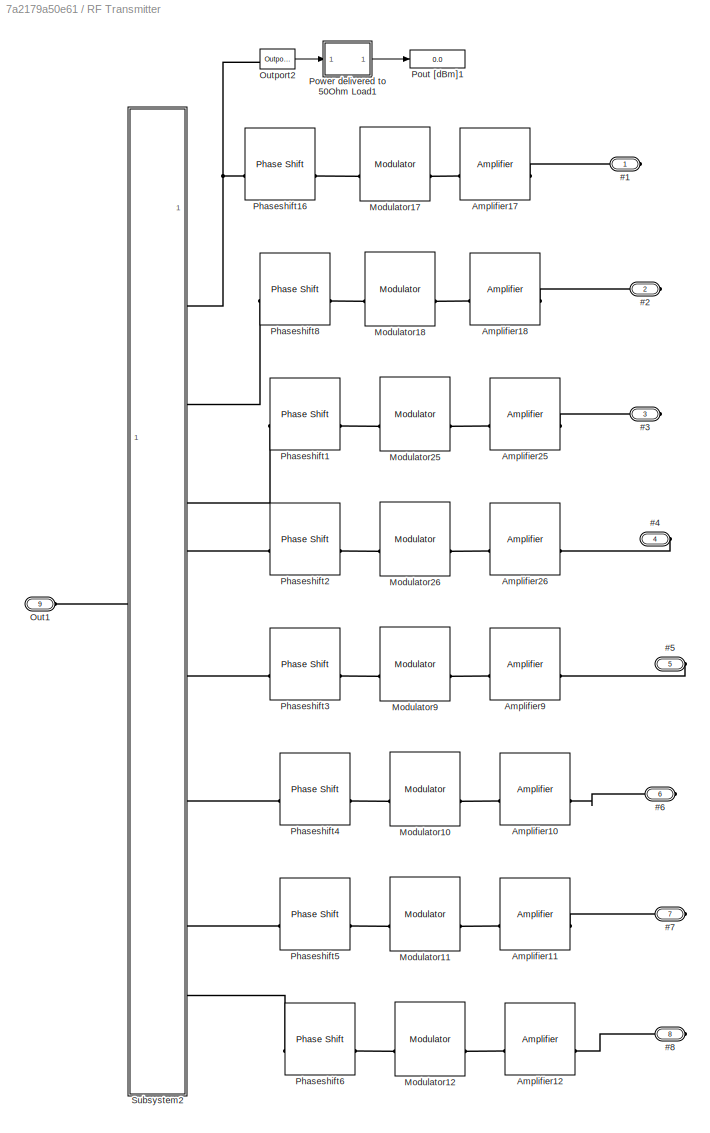
BLOCK [SubSystem] RF Transmitter
BLOCK [PMIOPort] RF Transmitter/#1
  NameLocation = top
  Side = Right
BLOCK [PMIOPort] RF Transmitter/#2
  NameLocation = top
  Port = 2
  Side = Right
BLOCK [PMIOPort] RF Transmitter/#3
  NameLocation = top
  Port = 3
  Side = Right
BLOCK [PMIOPort] RF Transmitter/#4
  NameLocation = top
  Port = 4
  Side = Right
BLOCK [PMIOPort] RF Transmitter/#5
  NameLocation = top
  Port = 5
  Side = Right
BLOCK [PMIOPort] RF Transmitter/#6
  NameLocation = top
  Port = 6
  Side = Right
BLOCK [PMIOPort] RF Transmitter/#7
  NameLocation = top
  Port = 7
  Side = Right
BLOCK [PMIOPort] RF Transmitter/#8
  NameLocation = top
  Port = 8
  Side = Right
BLOCK [Reference] RF Transmitter/Amplifier10  REF=simrfV2elements/Amplifier
  SourceBlock = simrfV2elements/Amplifier
  SourceType = Amplifier
  UserDataPersistent = on
BLOCK [Reference] RF Transmitter/Amplifier11  REF=simrfV2elements/Amplifier
  SourceBlock = simrfV2elements/Amplifier
  SourceType = Amplifier
  UserDataPersistent = on
BLOCK [Reference] RF Transmitter/Amplifier12  REF=simrfV2elements/Amplifier
  SourceBlock = simrfV2elements/Amplifier
  SourceType = Amplifier
  UserDataPersistent = on
BLOCK [Reference] RF Transmitter/Amplifier17  REF=simrfV2elements/Amplifier
  SourceBlock = simrfV2elements/Amplifier
  SourceType = Amplifier
  UserDataPersistent = on
BLOCK [Reference] RF Transmitter/Amplifier18  REF=simrfV2elements/Amplifier
  SourceBlock = simrfV2elements/Amplifier
  SourceType = Amplifier
  UserDataPersistent = on
BLOCK [Reference] RF Transmitter/Amplifier25  REF=simrfV2elements/Amplifier
  SourceBlock = simrfV2elements/Amplifier
  SourceType = Amplifier
  UserDataPersistent = on
BLOCK [Reference] RF Transmitter/Amplifier26  REF=simrfV2elements/Amplifier
  SourceBlock = simrfV2elements/Amplifier
  SourceType = Amplifier
  UserDataPersistent = on
BLOCK [Reference] RF Transmitter/Amplifier9  REF=simrfV2elements/Amplifier
  SourceBlock = simrfV2elements/Amplifier
  SourceType = Amplifier
  UserDataPersistent = on
BLOCK [Reference] RF Transmitter/Modulator10  REF=simrfV2systems/Modulator
  SourceBlock = simrfV2systems/Modulator
  SourceType = Modulator
BLOCK [Reference] RF Transmitter/Modulator11  REF=simrfV2systems/Modulator
  SourceBlock = simrfV2systems/Modulator
  SourceType = Modulator
BLOCK [Reference] RF Transmitter/Modulator12  REF=simrfV2systems/Modulator
  SourceBlock = simrfV2systems/Modulator
  SourceType = Modulator
BLOCK [Reference] RF Transmitter/Modulator17  REF=simrfV2systems/Modulator
  SourceBlock = simrfV2systems/Modulator
  SourceType = Modulator
BLOCK [Reference] RF Transmitter/Modulator18  REF=simrfV2systems/Modulator
  SourceBlock = simrfV2systems/Modulator
  SourceType = Modulator
BLOCK [Reference] RF Transmitter/Modulator25  REF=simrfV2systems/Modulator
  SourceBlock = simrfV2systems/Modulator
  SourceType = Modulator
BLOCK [Reference] RF Transmitter/Modulator26  REF=simrfV2systems/Modulator
  SourceBlock = simrfV2systems/Modulator
  SourceType = Modulator
BLOCK [Reference] RF Transmitter/Modulator9  REF=simrfV2systems/Modulator
  SourceBlock = simrfV2systems/Modulator
  SourceType = Modulator
BLOCK [PMIOPort] RF Transmitter/Out1
  NameLocation = top
  Port = 9
  Side = Left
BLOCK [Reference] RF Transmitter/Outport2  REF=simrfV2util1/Outport
  SourceBlock = simrfV2util1/Outport
  SourceType = Outport
BLOCK [Reference] RF Transmitter/Phaseshift1  REF=simrfV2elements/Phase Shift
  SourceBlock = simrfV2elements/Phase Shift
  SourceType = Phase Shift
BLOCK [Reference] RF Transmitter/Phaseshift16  REF=simrfV2elements/Phase Shift
  SourceBlock = simrfV2elements/Phase Shift
  SourceType = Phase Shift
BLOCK [Reference] RF Transmitter/Phaseshift2  REF=simrfV2elements/Phase Shift
  SourceBlock = simrfV2elements/Phase Shift
  SourceType = Phase Shift
BLOCK [Reference] RF Transmitter/Phaseshift3  REF=simrfV2elements/Phase Shift
  SourceBlock = simrfV2elements/Phase Shift
  SourceType = Phase Shift
BLOCK [Reference] RF Transmitter/Phaseshift4  REF=simrfV2elements/Phase Shift
  SourceBlock = simrfV2elements/Phase Shift
  SourceType = Phase Shift
BLOCK [Reference] RF Transmitter/Phaseshift5  REF=simrfV2elements/Phase Shift
  SourceBlock = simrfV2elements/Phase Shift
  SourceType = Phase Shift
BLOCK [Reference] RF Transmitter/Phaseshift6  REF=simrfV2elements/Phase Shift
  SourceBlock = simrfV2elements/Phase Shift
  SourceType = Phase Shift
BLOCK [Reference] RF Transmitter/Phaseshift8  REF=simrfV2elements/Phase Shift
  SourceBlock = simrfV2elements/Phase Shift
  SourceType = Phase Shift
BLOCK [Display] RF Transmitter/Pout [dBm]1
  Decimation = 1
BLOCK [SubSystem] RF Transmitter/Power delivered to 50Ohm Load1
  NameLocation = top
  ShowPortLabels = none
BLOCK [Buffer] RF Transmitter/Power delivered to 50Ohm Load1/CountNCycles
  N = 1
BLOCK [FrameConversion] RF Transmitter/Power delivered to 50Ohm Load1/Frame Conversion
  OutFrame = Sample-based
BLOCK [Gain] RF Transmitter/Power delivered to 50Ohm Load1/Gain2
  Gain = 1/1
BLOCK [Inport] RF Transmitter/Power delivered to 50Ohm Load1/In
BLOCK [Outport] RF Transmitter/Power delivered to 50Ohm Load1/Out
  VectorParamsAs1DForOutWhenUnconnected = off
BLOCK [Sqrt] RF Transmitter/Power delivered to 50Ohm Load1/Root
BLOCK [Math] RF Transmitter/Power delivered to 50Ohm Load1/Squared
  Operator = magnitude^2
  SignedPower = on
BLOCK [Sum] RF Transmitter/Power delivered to 50Ohm Load1/Sum
  CollapseMode = Specified dimension
  IconShape = rectangular
  Inputs = +
BLOCK [Reference] RF Transmitter/Power delivered to 50Ohm Load1/dB Conversion  REF=dspmathops/dB Conversion
  SourceBlock = dspmathops/dB Conversion
  SourceType = dB Conversion
BLOCK [SubSystem] RF Transmitter/Subsystem2
  NameLocation = top
BLOCK [PMIOPort] RF Transmitter/Subsystem2/1
  Port = 2
  Side = Right
BLOCK [PMIOPort] RF Transmitter/Subsystem2/2
  Port = 3
  Side = Right
BLOCK [PMIOPort] RF Transmitter/Subsystem2/3
  Port = 4
  Side = Right
BLOCK [PMIOPort] RF Transmitter/Subsystem2/4
  Port = 5
  Side = Right
BLOCK [PMIOPort] RF Transmitter/Subsystem2/5
  Port = 6
  Side = Right
BLOCK [PMIOPort] RF Transmitter/Subsystem2/6
  Port = 7
  Side = Right
BLOCK [PMIOPort] RF Transmitter/Subsystem2/7
  Port = 8
  Side = Right
BLOCK [PMIOPort] RF Transmitter/Subsystem2/8
  Port = 9
  Side = Right
BLOCK [Reference] RF Transmitter/Subsystem2/Divider  REF=simrfV2junction1/Divider
  NameLocation = top
  SourceBlock = simrfV2junction1/Divider
  SourceType = Ideal Dividers
  UserDataPersistent = on
BLOCK [Reference] RF Transmitter/Subsystem2/Divider1  REF=simrfV2junction1/Divider
  NameLocation = top
  SourceBlock = simrfV2junction1/Divider
  SourceType = Ideal Dividers
  UserDataPersistent = on
BLOCK [Reference] RF Transmitter/Subsystem2/Divider2  REF=simrfV2junction1/Divider
  NameLocation = top
  SourceBlock = simrfV2junction1/Divider
  SourceType = Ideal Dividers
  UserDataPersistent = on
BLOCK [Reference] RF Transmitter/Subsystem2/Divider3  REF=simrfV2junction1/Divider
  NameLocation = top
  SourceBlock = simrfV2junction1/Divider
  SourceType = Ideal Dividers
  UserDataPersistent = on
BLOCK [Reference] RF Transmitter/Subsystem2/Divider4  REF=simrfV2junction1/Divider
  NameLocation = top
  SourceBlock = simrfV2junction1/Divider
  SourceType = Ideal Dividers
  UserDataPersistent = on
BLOCK [Reference] RF Transmitter/Subsystem2/Divider5  REF=simrfV2junction1/Divider
  NameLocation = top
  SourceBlock = simrfV2junction1/Divider
  SourceType = Ideal Dividers
  UserDataPersistent = on
BLOCK [Reference] RF Transmitter/Subsystem2/Divider6  REF=simrfV2junction1/Divider
  NameLocation = top
  SourceBlock = simrfV2junction1/Divider
  SourceType = Ideal Dividers
  UserDataPersistent = on
BLOCK [PMIOPort] RF Transmitter/Subsystem2/Out
  Side = Left
BLOCK [Reference] RF Transmitter/Subsystem2/Phaseshift8  REF=simrfV2elements/Phase Shift
  SourceBlock = simrfV2elements/Phase Shift
  SourceType = Phase Shift
BLOCK [Scope] Scope
  Floating = off
  NumInputPorts = 3
  ScopeSpecificationString = Simulink.scopes.TimeScopeBlockCfg('CurrentConfiguration', extmgr.ConfigurationSet(extmgr.Configuration('Core','General UI',true),extmgr.Configuration('Core','Source UI',true),extmgr.Configuration('Sources','WiredSimulink',true,'SampleTime','1.23e-14'),extmgr.Configuration('Visuals','Time Domain',true,'SerializedDisplays',{struct('MinYLimReal','-0.00384','MaxYLimReal','0.00043','YLabelReal','','Min...<+3128ch>
BLOCK [Scope] Scope1
  Floating = off
  NumInputPorts = 2
  ScopeSpecificationString = Simulink.scopes.TimeScopeBlockCfg('CurrentConfiguration', extmgr.ConfigurationSet(extmgr.Configuration('Core','General UI',true),extmgr.Configuration('Core','Source UI',true),extmgr.Configuration('Sources','WiredSimulink',true,'DataLoggingVariableName','ScopeData2'),extmgr.Configuration('Visuals','Time Domain',true,'SerializedDisplays',{struct('MinYLimReal','-0.000034','MaxYLimReal','0.000004','YL...<+1956ch>
BLOCK [Scope] Scope15
  Floating = off
  NumInputPorts = 1
  ScopeSpecificationString = Simulink.scopes.TimeScopeBlockCfg('CurrentConfiguration', extmgr.ConfigurationSet(extmgr.Configuration('Core','General UI',true),extmgr.Configuration('Core','Source UI',true),extmgr.Configuration('Sources','WiredSimulink',true,'DataLoggingVariableName','ScopeData1'),extmgr.Configuration('Visuals','Time Domain',true,'SerializedDisplays',{struct('MinYLimReal','-1.00000','MaxYLimReal','1.00000','YLab...<+1440ch>
BLOCK [Scope] Scope2
  Floating = off
  NumInputPorts = 1
  ScopeSpecificationString = Simulink.scopes.TimeScopeBlockCfg('CurrentConfiguration', extmgr.ConfigurationSet(extmgr.Configuration('Core','General UI',true),extmgr.Configuration('Core','Source UI',true),extmgr.Configuration('Sources','WiredSimulink',true,'DataLoggingVariableName','ScopeData3'),extmgr.Configuration('Visuals','Time Domain',true),extmgr.Configuration('Tools','Plot Navigation',true),extmgr.Configuration('Tools',...<+58ch>
BLOCK [Scope] Scope3
  Floating = off
  NumInputPorts = 1
  ScopeSpecificationString = Simulink.scopes.TimeScopeBlockCfg('CurrentConfiguration', extmgr.ConfigurationSet(extmgr.Configuration('Core','General UI',true),extmgr.Configuration('Core','Source UI',true),extmgr.Configuration('Sources','WiredSimulink',true,'DataLoggingVariableName','ScopeData4'),extmgr.Configuration('Visuals','Time Domain',true),extmgr.Configuration('Tools','Plot Navigation',true),extmgr.Configuration('Tools',...<+58ch>
BLOCK [Scope] Scope4
  Commented = on
  Floating = off
  NumInputPorts = 1
  ScopeSpecificationString = Simulink.scopes.TimeScopeBlockCfg('CurrentConfiguration', extmgr.ConfigurationSet(extmgr.Configuration('Core','General UI',true),extmgr.Configuration('Core','Source UI',true),extmgr.Configuration('Sources','WiredSimulink',true,'DataLoggingVariableName','ScopeData5'),extmgr.Configuration('Visuals','Time Domain',true),extmgr.Configuration('Tools','Plot Navigation',true),extmgr.Configuration('Tools',...<+40ch>
BLOCK [Scope] Scope5
  Commented = on
  Floating = off
  NumInputPorts = 1
  ScopeSpecificationString = Simulink.scopes.TimeScopeBlockCfg('CurrentConfiguration', extmgr.ConfigurationSet(extmgr.Configuration('Core','General UI',true),extmgr.Configuration('Core','Source UI',true),extmgr.Configuration('Sources','WiredSimulink',true,'DataLoggingVariableName','ScopeData6'),extmgr.Configuration('Visuals','Time Domain',true),extmgr.Configuration('Tools','Plot Navigation',true),extmgr.Configuration('Tools',...<+58ch>
BLOCK [Scope] Scope6
  Commented = on
  Floating = off
  NumInputPorts = 1
  ScopeSpecificationString = Simulink.scopes.TimeScopeBlockCfg('CurrentConfiguration', extmgr.ConfigurationSet(extmgr.Configuration('Core','General UI',true),extmgr.Configuration('Core','Source UI',true),extmgr.Configuration('Sources','WiredSimulink',true,'DataLoggingVariableName','ScopeData7'),extmgr.Configuration('Visuals','Time Domain',true),extmgr.Configuration('Tools','Plot Navigation',true),extmgr.Configuration('Tools',...<+58ch>
BLOCK [Scope] Scope7
  Floating = off
  NumInputPorts = 1
  ScopeSpecificationString = Simulink.scopes.TimeScopeBlockCfg('CurrentConfiguration', extmgr.ConfigurationSet(extmgr.Configuration('Core','General UI',true),extmgr.Configuration('Core','Source UI',true),extmgr.Configuration('Sources','WiredSimulink',true,'DataLoggingVariableName','ScopeData8'),extmgr.Configuration('Visuals','Time Domain',true,'SerializedDisplays',{struct('MinYLimReal','-1.24943','MaxYLimReal','1.24943','YLab...<+1390ch>
BLOCK [Scope] Scope8
  Floating = off
  NumInputPorts = 1
  ScopeSpecificationString = Simulink.scopes.TimeScopeBlockCfg('CurrentConfiguration', extmgr.ConfigurationSet(extmgr.Configuration('Core','General UI',true),extmgr.Configuration('Core','Source UI',true),extmgr.Configuration('Sources','WiredSimulink',true,'DataLoggingVariableName','ScopeData9'),extmgr.Configuration('Visuals','Time Domain',true,'SerializedDisplays',{struct('MinYLimReal','-2.07875','MaxYLimReal','0.23097','YLab...<+1425ch>
BLOCK [Scope] Scope9
  Floating = off
  NumInputPorts = 1
  ScopeSpecificationString = Simulink.scopes.TimeScopeBlockCfg('CurrentConfiguration', extmgr.ConfigurationSet(extmgr.Configuration('Core','General UI',true),extmgr.Configuration('Core','Source UI',true),extmgr.Configuration('Sources','WiredSimulink',true,'DataLoggingVariableName','ScopeData10'),extmgr.Configuration('Visuals','Time Domain',true,'SerializedDisplays',{struct('MinYLimReal','-2.07875','MaxYLimReal','0.23097','YLa...<+1391ch>
BLOCK [SubSystem] Signal Source
  Commented = on
BLOCK [Sin] Signal Source/3.25GHz Sine
  Frequency = 2*pi*3.25e9
  SampleTime = 0
BLOCK [Sin] Signal Source/62.5MHz Sine
  Frequency = 2*pi*62.5e6
  SampleTime = 0
BLOCK [Outport] Signal Source/Out1
BLOCK [Product] Signal Source/Product1
BLOCK [SubSystem] Signal Source2
BLOCK [Sin] Signal Source2/3.25GHz Sine
  Frequency = 2*pi*3.25e9
  SampleTime = 0
BLOCK [Sin] Signal Source2/62.5MHz Sine
  Frequency = 2*pi*62.5e6
  SampleTime = 0
BLOCK [Outport] Signal Source2/Out1
BLOCK [Product] Signal Source2/Product1
BLOCK [Sum] Sum of Elements1
  IconShape = rectangular
  Inputs = +
BLOCK [SubSystem] TX 1GHz ADC
  Commented = on
BLOCK [ZeroOrderHold] TX 1GHz ADC/1GHz Sampling
  SampleTime = 1/1e9
BLOCK [ZeroOrderHold] TX 1GHz ADC/1GHz Sampling3
  SampleTime = 1/1e9
BLOCK [ZeroOrderHold] TX 1GHz ADC/1GHz Sampling4
  SampleTime = 1/1e9
BLOCK [SubSystem] TX 1GHz ADC/Decimation1
  ErrorFcn = dspFilterRealizedInBasicElemsAlgLoopErrFcnCallback
  Tag = FilterWizardSubSystem
  UserDataPersistent = on
BLOCK [DataTypeConversion] TX 1GHz ADC/Decimation1/CombCast5
  OutDataTypeStr = fixdt(1,18,15)
  RndMeth = Floor
  SaturateOnIntegerOverflow = off
BLOCK [Delay] TX 1GHz ADC/Decimation1/CombDelay5
  DelayLength = 1
  InitialCondition = 0
  InputPortMap = u0
  NameLocation = right
BLOCK [Delay] TX 1GHz ADC/Decimation1/CombDelay6
  DelayLength = 1
  InitialCondition = 0
  InputPortMap = u0
  NameLocation = right
BLOCK [Sum] TX 1GHz ADC/Decimation1/CombSum5
  AccumDataTypeStr = fixdt(1,18,15)
  Inputs = |+-
  OutDataTypeStr = fixdt(1,18,15)
BLOCK [Sum] TX 1GHz ADC/Decimation1/CombSum6
  AccumDataTypeStr = fixdt(1,18,15)
  Inputs = |+-
  OutDataTypeStr = fixdt(1,18,15)
BLOCK [DataTypeConversion] TX 1GHz ADC/Decimation1/ConvertIn
  OutDataTypeStr = fixdt(1,16,15)
  RndMeth = Nearest
BLOCK [DataTypeConversion] TX 1GHz ADC/Decimation1/ConvertOut
  OutDataTypeStr = fixdt(1,18,15)
  RndMeth = Floor
  SaturateOnIntegerOverflow = off
BLOCK [DownSample] TX 1GHz ADC/Decimation1/Down Sample
  AllowArbitraryFixedInput = on
  InputProcessing = Elements as channels (sample based)
  RateOptions = Allow multirate processing
BLOCK [Inport] TX 1GHz ADC/Decimation1/Input
BLOCK [Delay] TX 1GHz ADC/Decimation1/IntDelay2
  DelayLength = 1
  InitialCondition = 0
  InputPortMap = u0
BLOCK [Delay] TX 1GHz ADC/Decimation1/IntDelay3
  DelayLength = 1
  InitialCondition = 0
  InputPortMap = u0
BLOCK [Sum] TX 1GHz ADC/Decimation1/IntSum2
  AccumDataTypeStr = fixdt(1,18,15)
  Inputs = |++
  OutDataTypeStr = fixdt(1,18,15)
BLOCK [Sum] TX 1GHz ADC/Decimation1/IntSum3
  AccumDataTypeStr = fixdt(1,18,15)
  Inputs = |++
  OutDataTypeStr = fixdt(1,18,15)
BLOCK [Outport] TX 1GHz ADC/Decimation1/Output
BLOCK [SubSystem] TX 1GHz ADC/Decimation3
  ErrorFcn = dspFilterRealizedInBasicElemsAlgLoopErrFcnCallback
  Tag = FilterWizardSubSystem
  UserDataPersistent = on
BLOCK [DataTypeConversion] TX 1GHz ADC/Decimation3/CombCast5
  OutDataTypeStr = fixdt(1,18,15)
  RndMeth = Floor
  SaturateOnIntegerOverflow = off
BLOCK [Delay] TX 1GHz ADC/Decimation3/CombDelay5
  DelayLength = 1
  InitialCondition = 0
  InputPortMap = u0
  NameLocation = right
BLOCK [Delay] TX 1GHz ADC/Decimation3/CombDelay6
  DelayLength = 1
  InitialCondition = 0
  InputPortMap = u0
  NameLocation = right
BLOCK [Sum] TX 1GHz ADC/Decimation3/CombSum5
  AccumDataTypeStr = fixdt(1,18,15)
  Inputs = |+-
  OutDataTypeStr = fixdt(1,18,15)
BLOCK [Sum] TX 1GHz ADC/Decimation3/CombSum6
  AccumDataTypeStr = fixdt(1,18,15)
  Inputs = |+-
  OutDataTypeStr = fixdt(1,18,15)
BLOCK [DataTypeConversion] TX 1GHz ADC/Decimation3/ConvertIn
  OutDataTypeStr = fixdt(1,16,15)
  RndMeth = Nearest
BLOCK [DataTypeConversion] TX 1GHz ADC/Decimation3/ConvertOut
  OutDataTypeStr = fixdt(1,18,15)
  RndMeth = Floor
  SaturateOnIntegerOverflow = off
BLOCK [DownSample] TX 1GHz ADC/Decimation3/Down Sample
  AllowArbitraryFixedInput = on
  InputProcessing = Elements as channels (sample based)
  RateOptions = Allow multirate processing
BLOCK [Inport] TX 1GHz ADC/Decimation3/Input
BLOCK [Delay] TX 1GHz ADC/Decimation3/IntDelay2
  DelayLength = 1
  InitialCondition = 0
  InputPortMap = u0
BLOCK [Delay] TX 1GHz ADC/Decimation3/IntDelay3
  DelayLength = 1
  InitialCondition = 0
  InputPortMap = u0
BLOCK [Sum] TX 1GHz ADC/Decimation3/IntSum2
  AccumDataTypeStr = fixdt(1,18,15)
  Inputs = |++
  OutDataTypeStr = fixdt(1,18,15)
BLOCK [Sum] TX 1GHz ADC/Decimation3/IntSum3
  AccumDataTypeStr = fixdt(1,18,15)
  Inputs = |++
  OutDataTypeStr = fixdt(1,18,15)
BLOCK [Outport] TX 1GHz ADC/Decimation3/Output
BLOCK [Inport] TX 1GHz ADC/In1
BLOCK [Outport] TX 1GHz ADC/Out1
BLOCK [Product] TX 1GHz ADC/Product4
BLOCK [Product] TX 1GHz ADC/Product5
BLOCK [RealImagToComplex] TX 1GHz ADC/Real-Imag to Complex2
BLOCK [Sin] TX 1GHz ADC/cos*2*pi*250M
  Frequency = 2*pi*250e6
  Phase = 1.5707
  SampleTime = 0
BLOCK [Sin] TX 1GHz ADC/sin*2*pi*250M
  Frequency = 2*pi*250e6
  SampleTime = 0
BLOCK [SubSystem] TX 1GHz ADC1
BLOCK [ZeroOrderHold] TX 1GHz ADC1/1GHz Sampling
  SampleTime = 1/1e9
BLOCK [ZeroOrderHold] TX 1GHz ADC1/1GHz Sampling3
  SampleTime = 1/1e9
BLOCK [ZeroOrderHold] TX 1GHz ADC1/1GHz Sampling4
  SampleTime = 1/1e9
BLOCK [SubSystem] TX 1GHz ADC1/Decimation1
  ErrorFcn = dspFilterRealizedInBasicElemsAlgLoopErrFcnCallback
  Tag = FilterWizardSubSystem
  UserDataPersistent = on
BLOCK [DataTypeConversion] TX 1GHz ADC1/Decimation1/CombCast5
  OutDataTypeStr = fixdt(1,18,15)
  RndMeth = Floor
  SaturateOnIntegerOverflow = off
BLOCK [Delay] TX 1GHz ADC1/Decimation1/CombDelay5
  DelayLength = 1
  InitialCondition = 0
  InputPortMap = u0
  NameLocation = right
BLOCK [Delay] TX 1GHz ADC1/Decimation1/CombDelay6
  DelayLength = 1
  InitialCondition = 0
  InputPortMap = u0
  NameLocation = right
BLOCK [Sum] TX 1GHz ADC1/Decimation1/CombSum5
  AccumDataTypeStr = fixdt(1,18,15)
  Inputs = |+-
  OutDataTypeStr = fixdt(1,18,15)
BLOCK [Sum] TX 1GHz ADC1/Decimation1/CombSum6
  AccumDataTypeStr = fixdt(1,18,15)
  Inputs = |+-
  OutDataTypeStr = fixdt(1,18,15)
BLOCK [DataTypeConversion] TX 1GHz ADC1/Decimation1/ConvertIn
  OutDataTypeStr = fixdt(1,16,15)
  RndMeth = Nearest
BLOCK [DataTypeConversion] TX 1GHz ADC1/Decimation1/ConvertOut
  OutDataTypeStr = fixdt(1,18,15)
  RndMeth = Floor
  SaturateOnIntegerOverflow = off
BLOCK [DownSample] TX 1GHz ADC1/Decimation1/Down Sample
  AllowArbitraryFixedInput = on
  InputProcessing = Elements as channels (sample based)
  RateOptions = Allow multirate processing
BLOCK [Inport] TX 1GHz ADC1/Decimation1/Input
BLOCK [Delay] TX 1GHz ADC1/Decimation1/IntDelay2
  DelayLength = 1
  InitialCondition = 0
  InputPortMap = u0
BLOCK [Delay] TX 1GHz ADC1/Decimation1/IntDelay3
  DelayLength = 1
  InitialCondition = 0
  InputPortMap = u0
BLOCK [Sum] TX 1GHz ADC1/Decimation1/IntSum2
  AccumDataTypeStr = fixdt(1,18,15)
  Inputs = |++
  OutDataTypeStr = fixdt(1,18,15)
BLOCK [Sum] TX 1GHz ADC1/Decimation1/IntSum3
  AccumDataTypeStr = fixdt(1,18,15)
  Inputs = |++
  OutDataTypeStr = fixdt(1,18,15)
BLOCK [Outport] TX 1GHz ADC1/Decimation1/Output
BLOCK [SubSystem] TX 1GHz ADC1/Decimation3
  ErrorFcn = dspFilterRealizedInBasicElemsAlgLoopErrFcnCallback
  Tag = FilterWizardSubSystem
  UserDataPersistent = on
BLOCK [DataTypeConversion] TX 1GHz ADC1/Decimation3/CombCast5
  OutDataTypeStr = fixdt(1,18,15)
  RndMeth = Floor
  SaturateOnIntegerOverflow = off
BLOCK [Delay] TX 1GHz ADC1/Decimation3/CombDelay5
  DelayLength = 1
  InitialCondition = 0
  InputPortMap = u0
  NameLocation = right
BLOCK [Delay] TX 1GHz ADC1/Decimation3/CombDelay6
  DelayLength = 1
  InitialCondition = 0
  InputPortMap = u0
  NameLocation = right
BLOCK [Sum] TX 1GHz ADC1/Decimation3/CombSum5
  AccumDataTypeStr = fixdt(1,18,15)
  Inputs = |+-
  OutDataTypeStr = fixdt(1,18,15)
BLOCK [Sum] TX 1GHz ADC1/Decimation3/CombSum6
  AccumDataTypeStr = fixdt(1,18,15)
  Inputs = |+-
  OutDataTypeStr = fixdt(1,18,15)
BLOCK [DataTypeConversion] TX 1GHz ADC1/Decimation3/ConvertIn
  OutDataTypeStr = fixdt(1,16,15)
  RndMeth = Nearest
BLOCK [DataTypeConversion] TX 1GHz ADC1/Decimation3/ConvertOut
  OutDataTypeStr = fixdt(1,18,15)
  RndMeth = Floor
  SaturateOnIntegerOverflow = off
BLOCK [DownSample] TX 1GHz ADC1/Decimation3/Down Sample
  AllowArbitraryFixedInput = on
  InputProcessing = Elements as channels (sample based)
  RateOptions = Allow multirate processing
BLOCK [Inport] TX 1GHz ADC1/Decimation3/Input
BLOCK [Delay] TX 1GHz ADC1/Decimation3/IntDelay2
  DelayLength = 1
  InitialCondition = 0
  InputPortMap = u0
BLOCK [Delay] TX 1GHz ADC1/Decimation3/IntDelay3
  DelayLength = 1
  InitialCondition = 0
  InputPortMap = u0
BLOCK [Sum] TX 1GHz ADC1/Decimation3/IntSum2
  AccumDataTypeStr = fixdt(1,18,15)
  Inputs = |++
  OutDataTypeStr = fixdt(1,18,15)
BLOCK [Sum] TX 1GHz ADC1/Decimation3/IntSum3
  AccumDataTypeStr = fixdt(1,18,15)
  Inputs = |++
  OutDataTypeStr = fixdt(1,18,15)
BLOCK [Outport] TX 1GHz ADC1/Decimation3/Output
BLOCK [Inport] TX 1GHz ADC1/In1
BLOCK [Outport] TX 1GHz ADC1/Out1
BLOCK [Outport] TX 1GHz ADC1/Out2
  Port = 2
BLOCK [Product] TX 1GHz ADC1/Product4
BLOCK [Product] TX 1GHz ADC1/Product5
BLOCK [RealImagToComplex] TX 1GHz ADC1/Real-Imag to Complex2
BLOCK [Sin] TX 1GHz ADC1/cos*2*pi*250M
  Frequency = 2*pi*250e6
  Phase = 1.5707
  SampleTime = 0
BLOCK [Sin] TX 1GHz ADC1/sin*2*pi*250M
  Frequency = 2*pi*250e6
  SampleTime = 0
BLOCK [SubSystem] TX 1GHz DAC
  Commented = on
BLOCK [ZeroOrderHold] TX 1GHz DAC/1GHz Sampling1
  SampleTime = 1/1e9
BLOCK [ZeroOrderHold] TX 1GHz DAC/1GHz Sampling2
  SampleTime = 1/1e9
BLOCK [Sin] TX 1GHz DAC/250MHz Cosine
  Frequency = 2*pi*250e6
  Phase = 1.5707
  SampleTime = 0
BLOCK [Sin] TX 1GHz DAC/250MHz Sine
  Frequency = 2*pi*250e6
  SampleTime = 0
BLOCK [Bias] TX 1GHz DAC/Bias
  Bias = Bias
  SaturateOnIntegerOverflow = off
BLOCK [Reference] TX 1GHz DAC/CIC Compensation Interpolator3  REF=dspfdesign/CIC Compensation
Interpolator
  SourceBlock = dspfdesign/CIC Compensation\nInterpolator
  SourceType = dsp.simulink.CICCompensationInterpolator
BLOCK [DataTypeConversion] TX 1GHz DAC/Data Type Conversion
  OutDataTypeStr = double
  RndMeth = Floor
  SaturateOnIntegerOverflow = off
BLOCK [Demux] TX 1GHz DAC/Demux
  Outputs = 2
BLOCK [Gain] TX 1GHz DAC/Gain
  Gain = Ref / 2^N
BLOCK [Outport] TX 1GHz DAC/Ideal DAC
BLOCK [Inport] TX 1GHz DAC/In1
BLOCK [Outport] TX 1GHz DAC/Out2
  Port = 2
BLOCK [Product] TX 1GHz DAC/Product3
BLOCK [DiscretePulseGenerator] TX 1GHz DAC/Pulse Generator
  Period = 1 / 1e9
  PulseType = Time based
  PulseWidth = 50
BLOCK [RealImagToComplex] TX 1GHz DAC/Real-Imag to Complex1
BLOCK [ComplexToRealImag] TX 1GHz DAC/Real{Mod Signal}3
  Output = Real
BLOCK [Reference] TX 1GHz DAC/Sample and Hold  REF=dspsigops/Sample
and Hold
  SourceBlock = dspsigops/Sample\nand Hold
  SourceType = Sample and Hold
BLOCK [SubSystem] TX 1GHz DAC1
BLOCK [DiscretePulseGenerator] TX 1GHz DAC1/1GHz Pulse Generator
  NameLocation = left
  Period = 1 / 1e9
  PulseType = Time based
  PulseWidth = 50
BLOCK [ZeroOrderHold] TX 1GHz DAC1/1GHz Sampling1
  SampleTime = 1/1e9
BLOCK [ZeroOrderHold] TX 1GHz DAC1/1GHz Sampling2
  SampleTime = 1/1e9
BLOCK [Sin] TX 1GHz DAC1/250MHz Cosine
  Frequency = 2*pi*250e6
  Phase = 1.5707
  SampleTime = 0
BLOCK [Sin] TX 1GHz DAC1/250MHz Sine
  Frequency = 2*pi*250e6
  SampleTime = 0
BLOCK [Bias] TX 1GHz DAC1/Bias
  Bias = Bias
  SaturateOnIntegerOverflow = off
BLOCK [Reference] TX 1GHz DAC1/CIC Compensation Interpolator3  REF=dspfdesign/CIC Compensation
Interpolator
  SourceBlock = dspfdesign/CIC Compensation\nInterpolator
  SourceType = dsp.simulink.CICCompensationInterpolator
BLOCK [DataTypeConversion] TX 1GHz DAC1/Data Type Conversion
  OutDataTypeStr = double
  RndMeth = Floor
  SaturateOnIntegerOverflow = off
BLOCK [Demux] TX 1GHz DAC1/Demux
  Outputs = 2
BLOCK [Gain] TX 1GHz DAC1/Gain
BLOCK [Outport] TX 1GHz DAC1/Ideal DAC
BLOCK [Inport] TX 1GHz DAC1/In1
BLOCK [Outport] TX 1GHz DAC1/Out2
  Port = 2
BLOCK [Product] TX 1GHz DAC1/Product3
BLOCK [RealImagToComplex] TX 1GHz DAC1/Real-Imag to Complex1
BLOCK [ComplexToRealImag] TX 1GHz DAC1/Real{Mod Signal}3
  Output = Real
BLOCK [Reference] TX 1GHz DAC1/Sample and Hold  REF=dspsigops/Sample
and Hold
  SourceBlock = dspsigops/Sample\nand Hold
  SourceType = Sample and Hold
BLOCK [Reference] Thermal Noise  REF=simrfV2sources1/Noise
  SourceBlock = simrfV2sources1/Noise
  SourceType = Noise Source
ANNOTATION (root): RF_sim
ANNOTATION (root): rx_version_1208
ANNOTATION (root): Beam Control IC RX
ANNOTATION (root): TX IQ 250MHz
ANNOTATION DAC3: Ideal DAC
ANNOTATION TX 1GHz DAC: Ideal DAC
ANNOTATION TX 1GHz DAC1: Ideal DAC
NET ADC3/Data Type Conversion1:1 -> ADC3/Product1:2, ADC3/Scope2:3
NET ADC3/Data Type Conversion2:1 -> ADC3/Product1:1, ADC3/Product:2, ADC3/Scope1:1, ADC3/Scope2:2
NET ADC3/Data Type Conversion:1 -> ADC3/Product:1, ADC3/Scope2:1
NET ADC3/In1:1 -> ADC3/Scope3:1, ADC3/Scope3:2, ADC3/Zero-Order Hold:1
NET ADC3/Product1:1 -> ADC3/Out2:1, ADC3/Scope:2
NET ADC3/Product:1 -> ADC3/Out1:1, ADC3/Scope:1
LINE ADC3/Sine Wave1:1 -> ADC3/Data Type Conversion1:1
LINE ADC3/Sine Wave:1 -> ADC3/Data Type Conversion:1
NET ADC3/Zero-Order Hold:1 -> ADC3/Data Type Conversion2:1, ADC3/Scope3:3
NET ADC3:1 -> Digital_Compensation3:1, Scope1:1
NET ADC3:2 -> Digital_Compensation3:2, Scope1:2
LINE Antenna1:1 -> Free Space Path Loss:1
NET Complex to Real-Imag:1 -> ADC3:1, Scope:2
LINE Complex to Real-Imag:2 -> Scope:3
NET DAC3/Bandpass Filter:1 -> DAC3/Out1:1, DAC3/Scope:2
LINE DAC3/Bias:1 -> DAC3/Data Type Conversion2:1
NET DAC3/CIC Interpolation:1 -> DAC3/Product:1, DAC3/Scope2:2, DAC3/Scope3:1
NET DAC3/Complex to Real-Imag:1 -> DAC3/Data Type Conversion1:1, DAC3/Scope1:1
NET DAC3/Data Type Conversion1:1 -> DAC3/Sample and Hold:1, DAC3/Scope4:1
NET DAC3/Data Type Conversion2:1 -> DAC3/Bandpass Filter:1, DAC3/Scope4:2, DAC3/Scope:1
LINE DAC3/Data Type Conversion:1 -> DAC3/Product:2
LINE DAC3/Gain:1 -> DAC3/Bias:1
NET DAC3/In1:1 -> DAC3/CIC Interpolation:1, DAC3/Scope2:1
LINE DAC3/In2:1 -> DAC3/Sample and Hold:trigger
NET DAC3/Product:1 -> DAC3/Complex to Real-Imag:1, DAC3/Scope1:2, DAC3/Scope3:2
LINE DAC3/Real-Imag to Complex:1 -> DAC3/Data Type Conversion:1
LINE DAC3/Sample and Hold:1 -> DAC3/Gain:1
LINE DAC3/Sine Wave2:1 -> DAC3/Real-Imag to Complex:2
LINE DAC3/Sine Wave:1 -> DAC3/Real-Imag to Complex:1
LINE DAC3:1 -> Scope15:1
LINE Digital_Beam_Former3/Gain:1 -> Digital_Beam_Former3/Out1:1
LINE Digital_Beam_Former3/In1:1 -> Digital_Beam_Former3/Gain:1
NET Digital_Beam_Former3:1 -> Scope3:1, Sum of Elements1:1
NET Digital_Compensation3/CIC_Decimation_Filter1/CombCast5:1 -> Digital_Compensation3/CIC_Decimation_Filter1/CombDelay5:1, Digital_Compensation3/CIC_Decimation_Filter1/CombSum5:1
LINE Digital_Compensation3/CIC_Decimation_Filter1/CombDelay5:1 -> Digital_Compensation3/CIC_Decimation_Filter1/CombSum5:2
LINE Digital_Compensation3/CIC_Decimation_Filter1/CombDelay6:1 -> Digital_Compensation3/CIC_Decimation_Filter1/CombSum6:2
NET Digital_Compensation3/CIC_Decimation_Filter1/CombSum5:1 -> Digital_Compensation3/CIC_Decimation_Filter1/CombDelay6:1, Digital_Compensation3/CIC_Decimation_Filter1/CombSum6:1
LINE Digital_Compensation3/CIC_Decimation_Filter1/CombSum6:1 -> Digital_Compensation3/CIC_Decimation_Filter1/ConvertOut:1
LINE Digital_Compensation3/CIC_Decimation_Filter1/ConvertIn:1 -> Digital_Compensation3/CIC_Decimation_Filter1/IntSum2:1
LINE Digital_Compensation3/CIC_Decimation_Filter1/ConvertOut:1 -> Digital_Compensation3/CIC_Decimation_Filter1/Output:1
LINE Digital_Compensation3/CIC_Decimation_Filter1/Down Sample:1 -> Digital_Compensation3/CIC_Decimation_Filter1/CombCast5:1
LINE Digital_Compensation3/CIC_Decimation_Filter1/Input:1 -> Digital_Compensation3/CIC_Decimation_Filter1/ConvertIn:1
NET Digital_Compensation3/CIC_Decimation_Filter1/IntDelay2:1 -> Digital_Compensation3/CIC_Decimation_Filter1/IntSum2:2, Digital_Compensation3/CIC_Decimation_Filter1/IntSum3:1
NET Digital_Compensation3/CIC_Decimation_Filter1/IntDelay3:1 -> Digital_Compensation3/CIC_Decimation_Filter1/Down Sample:1, Digital_Compensation3/CIC_Decimation_Filter1/IntSum3:2
LINE Digital_Compensation3/CIC_Decimation_Filter1/IntSum2:1 -> Digital_Compensation3/CIC_Decimation_Filter1/IntDelay2:1
LINE Digital_Compensation3/CIC_Decimation_Filter1/IntSum3:1 -> Digital_Compensation3/CIC_Decimation_Filter1/IntDelay3:1
NET Digital_Compensation3/CIC_Decimation_Filter1:1 -> Digital_Compensation3/Real-Imag to Complex:1, Digital_Compensation3/Scope2:2, Digital_Compensation3/Scope3:1
NET Digital_Compensation3/CIC_Decimation_Filter2/CombCast5:1 -> Digital_Compensation3/CIC_Decimation_Filter2/CombDelay5:1, Digital_Compensation3/CIC_Decimation_Filter2/CombSum5:1
LINE Digital_Compensation3/CIC_Decimation_Filter2/CombDelay5:1 -> Digital_Compensation3/CIC_Decimation_Filter2/CombSum5:2
LINE Digital_Compensation3/CIC_Decimation_Filter2/CombDelay6:1 -> Digital_Compensation3/CIC_Decimation_Filter2/CombSum6:2
NET Digital_Compensation3/CIC_Decimation_Filter2/CombSum5:1 -> Digital_Compensation3/CIC_Decimation_Filter2/CombDelay6:1, Digital_Compensation3/CIC_Decimation_Filter2/CombSum6:1
LINE Digital_Compensation3/CIC_Decimation_Filter2/CombSum6:1 -> Digital_Compensation3/CIC_Decimation_Filter2/ConvertOut:1
LINE Digital_Compensation3/CIC_Decimation_Filter2/ConvertIn:1 -> Digital_Compensation3/CIC_Decimation_Filter2/IntSum2:1
LINE Digital_Compensation3/CIC_Decimation_Filter2/ConvertOut:1 -> Digital_Compensation3/CIC_Decimation_Filter2/Output:1
LINE Digital_Compensation3/CIC_Decimation_Filter2/Down Sample:1 -> Digital_Compensation3/CIC_Decimation_Filter2/CombCast5:1
LINE Digital_Compensation3/CIC_Decimation_Filter2/Input:1 -> Digital_Compensation3/CIC_Decimation_Filter2/ConvertIn:1
NET Digital_Compensation3/CIC_Decimation_Filter2/IntDelay2:1 -> Digital_Compensation3/CIC_Decimation_Filter2/IntSum2:2, Digital_Compensation3/CIC_Decimation_Filter2/IntSum3:1
NET Digital_Compensation3/CIC_Decimation_Filter2/IntDelay3:1 -> Digital_Compensation3/CIC_Decimation_Filter2/Down Sample:1, Digital_Compensation3/CIC_Decimation_Filter2/IntSum3:2
LINE Digital_Compensation3/CIC_Decimation_Filter2/IntSum2:1 -> Digital_Compensation3/CIC_Decimation_Filter2/IntDelay2:1
LINE Digital_Compensation3/CIC_Decimation_Filter2/IntSum3:1 -> Digital_Compensation3/CIC_Decimation_Filter2/IntDelay3:1
NET Digital_Compensation3/CIC_Decimation_Filter2:1 -> Digital_Compensation3/Real-Imag to Complex:2, Digital_Compensation3/Scope1:1, Digital_Compensation3/Scope3:2
LINE Digital_Compensation3/Constant1:1 -> Digital_Compensation3/Data Type Conversion1:1
LINE Digital_Compensation3/Constant:1 -> Digital_Compensation3/Data Type Conversion:1
LINE Digital_Compensation3/Data Type Conversion1:1 -> Digital_Compensation3/Variable Fractional Delay:2
LINE Digital_Compensation3/Data Type Conversion:1 -> Digital_Compensation3/Product:2
NET Digital_Compensation3/In2:1 -> Digital_Compensation3/CIC_Decimation_Filter2:1, Digital_Compensation3/Scope1:2
NET Digital_Compensation3/Input:1 -> Digital_Compensation3/CIC_Decimation_Filter1:1, Digital_Compensation3/Scope2:1
NET Digital_Compensation3/Product:1 -> Digital_Compensation3/Scope:2, Digital_Compensation3/Variable Fractional Delay:1
NET Digital_Compensation3/Real-Imag to Complex:1 -> Digital_Compensation3/Product:1, Digital_Compensation3/Scope3:3
LINE Digital_Compensation3/TTD_Farrow1/Constant2:1 -> Digital_Compensation3/TTD_Farrow1/Index Vector:1
NET Digital_Compensation3/TTD_Farrow1/Constant3:1 -> Digital_Compensation3/TTD_Farrow1/Data Type Conversion7:1, Digital_Compensation3/TTD_Farrow1/Scope5:1
NET Digital_Compensation3/TTD_Farrow1/Cubic Lagrange Interpolator/Delay6:1 -> Digital_Compensation3/TTD_Farrow1/Cubic Lagrange Interpolator/Delay7:1, Digital_Compensation3/TTD_Farrow1/Cubic Lagrange Interpolator/Gain1:1
NET Digital_Compensation3/TTD_Farrow1/Cubic Lagrange Interpolator/Delay7:1 -> Digital_Compensation3/TTD_Farrow1/Cubic Lagrange Interpolator/Delay8:1, Digital_Compensation3/TTD_Farrow1/Cubic Lagrange Interpolator/Gain2:1
LINE Digital_Compensation3/TTD_Farrow1/Cubic Lagrange Interpolator/Delay8:1 -> Digital_Compensation3/TTD_Farrow1/Cubic Lagrange Interpolator/Gain3:1
LINE Digital_Compensation3/TTD_Farrow1/Cubic Lagrange Interpolator/Gain1:1 -> Digital_Compensation3/TTD_Farrow1/Cubic Lagrange Interpolator/Sum:1
LINE Digital_Compensation3/TTD_Farrow1/Cubic Lagrange Interpolator/Gain2:1 -> Digital_Compensation3/TTD_Farrow1/Cubic Lagrange Interpolator/Sum2:1
LINE Digital_Compensation3/TTD_Farrow1/Cubic Lagrange Interpolator/Gain3:1 -> Digital_Compensation3/TTD_Farrow1/Cubic Lagrange Interpolator/Sum3:1
LINE Digital_Compensation3/TTD_Farrow1/Cubic Lagrange Interpolator/Gain:1 -> Digital_Compensation3/TTD_Farrow1/Cubic Lagrange Interpolator/Sum:2
NET Digital_Compensation3/TTD_Farrow1/Cubic Lagrange Interpolator/In1:1 -> Digital_Compensation3/TTD_Farrow1/Cubic Lagrange Interpolator/Delay6:1, Digital_Compensation3/TTD_Farrow1/Cubic Lagrange Interpolator/Gain:1, Digital_Compensation3/TTD_Farrow1/Cubic Lagrange Interpolator/Scope2:3
NET Digital_Compensation3/TTD_Farrow1/Cubic Lagrange Interpolator/Sum2:1 -> Digital_Compensation3/TTD_Farrow1/Cubic Lagrange Interpolator/Scope2:1, Digital_Compensation3/TTD_Farrow1/Cubic Lagrange Interpolator/Sum3:2
NET Digital_Compensation3/TTD_Farrow1/Cubic Lagrange Interpolator/Sum3:1 -> Digital_Compensation3/TTD_Farrow1/Cubic Lagrange Interpolator/Out1:1, Digital_Compensation3/TTD_Farrow1/Cubic Lagrange Interpolator/Scope2:2
LINE Digital_Compensation3/TTD_Farrow1/Cubic Lagrange Interpolator/Sum:1 -> Digital_Compensation3/TTD_Farrow1/Cubic Lagrange Interpolator/Sum2:2
NET Digital_Compensation3/TTD_Farrow1/Cubic Lagrange Interpolator1/Delay6:1 -> Digital_Compensation3/TTD_Farrow1/Cubic Lagrange Interpolator1/Delay7:1, Digital_Compensation3/TTD_Farrow1/Cubic Lagrange Interpolator1/Gain1:1
NET Digital_Compensation3/TTD_Farrow1/Cubic Lagrange Interpolator1/Delay7:1 -> Digital_Compensation3/TTD_Farrow1/Cubic Lagrange Interpolator1/Delay8:1, Digital_Compensation3/TTD_Farrow1/Cubic Lagrange Interpolator1/Gain2:1
LINE Digital_Compensation3/TTD_Farrow1/Cubic Lagrange Interpolator1/Delay8:1 -> Digital_Compensation3/TTD_Farrow1/Cubic Lagrange Interpolator1/Gain3:1
LINE Digital_Compensation3/TTD_Farrow1/Cubic Lagrange Interpolator1/Gain1:1 -> Digital_Compensation3/TTD_Farrow1/Cubic Lagrange Interpolator1/Sum:1
LINE Digital_Compensation3/TTD_Farrow1/Cubic Lagrange Interpolator1/Gain2:1 -> Digital_Compensation3/TTD_Farrow1/Cubic Lagrange Interpolator1/Sum2:1
LINE Digital_Compensation3/TTD_Farrow1/Cubic Lagrange Interpolator1/Gain3:1 -> Digital_Compensation3/TTD_Farrow1/Cubic Lagrange Interpolator1/Sum3:1
LINE Digital_Compensation3/TTD_Farrow1/Cubic Lagrange Interpolator1/Gain:1 -> Digital_Compensation3/TTD_Farrow1/Cubic Lagrange Interpolator1/Sum:2
NET Digital_Compensation3/TTD_Farrow1/Cubic Lagrange Interpolator1/In1:1 -> Digital_Compensation3/TTD_Farrow1/Cubic Lagrange Interpolator1/Delay6:1, Digital_Compensation3/TTD_Farrow1/Cubic Lagrange Interpolator1/Gain:1
LINE Digital_Compensation3/TTD_Farrow1/Cubic Lagrange Interpolator1/Sum2:1 -> Digital_Compensation3/TTD_Farrow1/Cubic Lagrange Interpolator1/Sum3:2
LINE Digital_Compensation3/TTD_Farrow1/Cubic Lagrange Interpolator1/Sum3:1 -> Digital_Compensation3/TTD_Farrow1/Cubic Lagrange Interpolator1/Out1:1
LINE Digital_Compensation3/TTD_Farrow1/Cubic Lagrange Interpolator1/Sum:1 -> Digital_Compensation3/TTD_Farrow1/Cubic Lagrange Interpolator1/Sum2:2
LINE Digital_Compensation3/TTD_Farrow1/Cubic Lagrange Interpolator1:1 -> Digital_Compensation3/TTD_Farrow1/Sum2:1
NET Digital_Compensation3/TTD_Farrow1/Cubic Lagrange Interpolator2/Delay6:1 -> Digital_Compensation3/TTD_Farrow1/Cubic Lagrange Interpolator2/Delay7:1, Digital_Compensation3/TTD_Farrow1/Cubic Lagrange Interpolator2/Gain1:1
NET Digital_Compensation3/TTD_Farrow1/Cubic Lagrange Interpolator2/Delay7:1 -> Digital_Compensation3/TTD_Farrow1/Cubic Lagrange Interpolator2/Delay8:1, Digital_Compensation3/TTD_Farrow1/Cubic Lagrange Interpolator2/Gain2:1
LINE Digital_Compensation3/TTD_Farrow1/Cubic Lagrange Interpolator2/Delay8:1 -> Digital_Compensation3/TTD_Farrow1/Cubic Lagrange Interpolator2/Gain3:1
LINE Digital_Compensation3/TTD_Farrow1/Cubic Lagrange Interpolator2/Gain1:1 -> Digital_Compensation3/TTD_Farrow1/Cubic Lagrange Interpolator2/Sum:1
LINE Digital_Compensation3/TTD_Farrow1/Cubic Lagrange Interpolator2/Gain2:1 -> Digital_Compensation3/TTD_Farrow1/Cubic Lagrange Interpolator2/Sum2:1
LINE Digital_Compensation3/TTD_Farrow1/Cubic Lagrange Interpolator2/Gain3:1 -> Digital_Compensation3/TTD_Farrow1/Cubic Lagrange Interpolator2/Sum3:1
LINE Digital_Compensation3/TTD_Farrow1/Cubic Lagrange Interpolator2/Gain:1 -> Digital_Compensation3/TTD_Farrow1/Cubic Lagrange Interpolator2/Sum:2
NET Digital_Compensation3/TTD_Farrow1/Cubic Lagrange Interpolator2/In1:1 -> Digital_Compensation3/TTD_Farrow1/Cubic Lagrange Interpolator2/Delay6:1, Digital_Compensation3/TTD_Farrow1/Cubic Lagrange Interpolator2/Gain:1
LINE Digital_Compensation3/TTD_Farrow1/Cubic Lagrange Interpolator2/Sum2:1 -> Digital_Compensation3/TTD_Farrow1/Cubic Lagrange Interpolator2/Sum3:2
LINE Digital_Compensation3/TTD_Farrow1/Cubic Lagrange Interpolator2/Sum3:1 -> Digital_Compensation3/TTD_Farrow1/Cubic Lagrange Interpolator2/Out1:1
LINE Digital_Compensation3/TTD_Farrow1/Cubic Lagrange Interpolator2/Sum:1 -> Digital_Compensation3/TTD_Farrow1/Cubic Lagrange Interpolator2/Sum2:2
LINE Digital_Compensation3/TTD_Farrow1/Cubic Lagrange Interpolator2:1 -> Digital_Compensation3/TTD_Farrow1/Sum:1
NET Digital_Compensation3/TTD_Farrow1/Cubic Lagrange Interpolator3/Delay6:1 -> Digital_Compensation3/TTD_Farrow1/Cubic Lagrange Interpolator3/Delay7:1, Digital_Compensation3/TTD_Farrow1/Cubic Lagrange Interpolator3/Gain1:1
NET Digital_Compensation3/TTD_Farrow1/Cubic Lagrange Interpolator3/Delay7:1 -> Digital_Compensation3/TTD_Farrow1/Cubic Lagrange Interpolator3/Delay8:1, Digital_Compensation3/TTD_Farrow1/Cubic Lagrange Interpolator3/Gain2:1
LINE Digital_Compensation3/TTD_Farrow1/Cubic Lagrange Interpolator3/Delay8:1 -> Digital_Compensation3/TTD_Farrow1/Cubic Lagrange Interpolator3/Gain3:1
LINE Digital_Compensation3/TTD_Farrow1/Cubic Lagrange Interpolator3/Gain1:1 -> Digital_Compensation3/TTD_Farrow1/Cubic Lagrange Interpolator3/Sum:1
LINE Digital_Compensation3/TTD_Farrow1/Cubic Lagrange Interpolator3/Gain2:1 -> Digital_Compensation3/TTD_Farrow1/Cubic Lagrange Interpolator3/Sum2:1
LINE Digital_Compensation3/TTD_Farrow1/Cubic Lagrange Interpolator3/Gain3:1 -> Digital_Compensation3/TTD_Farrow1/Cubic Lagrange Interpolator3/Sum3:1
LINE Digital_Compensation3/TTD_Farrow1/Cubic Lagrange Interpolator3/Gain:1 -> Digital_Compensation3/TTD_Farrow1/Cubic Lagrange Interpolator3/Sum:2
NET Digital_Compensation3/TTD_Farrow1/Cubic Lagrange Interpolator3/In1:1 -> Digital_Compensation3/TTD_Farrow1/Cubic Lagrange Interpolator3/Delay6:1, Digital_Compensation3/TTD_Farrow1/Cubic Lagrange Interpolator3/Gain:1
LINE Digital_Compensation3/TTD_Farrow1/Cubic Lagrange Interpolator3/Sum2:1 -> Digital_Compensation3/TTD_Farrow1/Cubic Lagrange Interpolator3/Sum3:2
LINE Digital_Compensation3/TTD_Farrow1/Cubic Lagrange Interpolator3/Sum3:1 -> Digital_Compensation3/TTD_Farrow1/Cubic Lagrange Interpolator3/Out1:1
LINE Digital_Compensation3/TTD_Farrow1/Cubic Lagrange Interpolator3/Sum:1 -> Digital_Compensation3/TTD_Farrow1/Cubic Lagrange Interpolator3/Sum2:2
NET Digital_Compensation3/TTD_Farrow1/Cubic Lagrange Interpolator3:1 -> Digital_Compensation3/TTD_Farrow1/Product12:1, Digital_Compensation3/TTD_Farrow1/Scope1:1
NET Digital_Compensation3/TTD_Farrow1/Cubic Lagrange Interpolator:1 -> Digital_Compensation3/TTD_Farrow1/Scope4:2, Digital_Compensation3/TTD_Farrow1/Sum3:1
NET Digital_Compensation3/TTD_Farrow1/Data Type Conversion7:1 -> Digital_Compensation3/TTD_Farrow1/Product12:2, Digital_Compensation3/TTD_Farrow1/Product13:2, Digital_Compensation3/TTD_Farrow1/Product14:2, Digital_Compensation3/TTD_Farrow1/Scope5:2
NET Digital_Compensation3/TTD_Farrow1/Delay1:1 -> Digital_Compensation3/TTD_Farrow1/Delay2:1, Digital_Compensation3/TTD_Farrow1/Index Vector:3
NET Digital_Compensation3/TTD_Farrow1/Delay2:1 -> Digital_Compensation3/TTD_Farrow1/Delay3:1, Digital_Compensation3/TTD_Farrow1/Index Vector:4
NET Digital_Compensation3/TTD_Farrow1/Delay3:1 -> Digital_Compensation3/TTD_Farrow1/Delay4:1, Digital_Compensation3/TTD_Farrow1/Index Vector:5
NET Digital_Compensation3/TTD_Farrow1/Delay4:1 -> Digital_Compensation3/TTD_Farrow1/Delay5:1, Digital_Compensation3/TTD_Farrow1/Index Vector:6
LINE Digital_Compensation3/TTD_Farrow1/Delay5:1 -> Digital_Compensation3/TTD_Farrow1/Index Vector:7
NET Digital_Compensation3/TTD_Farrow1/In1:1 -> Digital_Compensation3/TTD_Farrow1/Delay1:1, Digital_Compensation3/TTD_Farrow1/Index Vector:2, Digital_Compensation3/TTD_Farrow1/Scope12:1
NET Digital_Compensation3/TTD_Farrow1/Index Vector:1 -> Digital_Compensation3/TTD_Farrow1/Cubic Lagrange Interpolator1:1, Digital_Compensation3/TTD_Farrow1/Cubic Lagrange Interpolator2:1, Digital_Compensation3/TTD_Farrow1/Cubic Lagrange Interpolator3:1, Digital_Compensation3/TTD_Farrow1/Cubic Lagrange Interpolator:1, Digital_Compensation3/TTD_Farrow1/Scope12:2, Digital_Compensation3/TTD_Farrow1/Scope4:1
NET Digital_Compensation3/TTD_Farrow1/Product12:1 -> Digital_Compensation3/TTD_Farrow1/Scope1:2, Digital_Compensation3/TTD_Farrow1/Sum:2
NET Digital_Compensation3/TTD_Farrow1/Product13:1 -> Digital_Compensation3/TTD_Farrow1/Scope2:2, Digital_Compensation3/TTD_Farrow1/Sum2:2
NET Digital_Compensation3/TTD_Farrow1/Product14:1 -> Digital_Compensation3/TTD_Farrow1/Scope3:1, Digital_Compensation3/TTD_Farrow1/Sum3:2
LINE Digital_Compensation3/TTD_Farrow1/Sum2:1 -> Digital_Compensation3/TTD_Farrow1/Product14:1
NET Digital_Compensation3/TTD_Farrow1/Sum3:1 -> Digital_Compensation3/TTD_Farrow1/Output:1, Digital_Compensation3/TTD_Farrow1/Scope3:2
NET Digital_Compensation3/TTD_Farrow1/Sum:1 -> Digital_Compensation3/TTD_Farrow1/Product13:1, Digital_Compensation3/TTD_Farrow1/Scope2:1
NET Digital_Compensation3/Variable Fractional Delay:1 -> Digital_Compensation3/Output:1, Digital_Compensation3/Scope:1
NET Digital_Compensation3:1 -> Digital_Beam_Former3:1, Scope2:1
LINE FBB1:1 -> Product1:2
LINE FBB:1 -> Product2:2
LINE Free Space Path Loss:1 -> Antenna2:1
LINE Outport1:1 -> Complex to Real-Imag:1
NET Product1:1 -> Scope9:1, TX 1GHz DAC1:1
NET Product2:1 -> Scope6:1, TX 1GHz DAC:1
LINE Pulse Generator3:1 -> DAC3:2
LINE RF Receiver/Outport1:1 -> RF Receiver/Power delivered to 50Ohm Load:1
LINE RF Receiver/Power delivered to 50Ohm Load/CountNCycles:1 -> RF Receiver/Power delivered to 50Ohm Load/Squared:1
LINE RF Receiver/Power delivered to 50Ohm Load/Frame Conversion:1 -> RF Receiver/Power delivered to 50Ohm Load/dB Conversion:1
LINE RF Receiver/Power delivered to 50Ohm Load/Gain2:1 -> RF Receiver/Power delivered to 50Ohm Load/Root:1
LINE RF Receiver/Power delivered to 50Ohm Load/In:1 -> RF Receiver/Power delivered to 50Ohm Load/CountNCycles:1
LINE RF Receiver/Power delivered to 50Ohm Load/Root:1 -> RF Receiver/Power delivered to 50Ohm Load/Frame Conversion:1
LINE RF Receiver/Power delivered to 50Ohm Load/Squared:1 -> RF Receiver/Power delivered to 50Ohm Load/Sum:1
LINE RF Receiver/Power delivered to 50Ohm Load/Sum:1 -> RF Receiver/Power delivered to 50Ohm Load/Gain2:1
LINE RF Receiver/Power delivered to 50Ohm Load/dB Conversion:1 -> RF Receiver/Power delivered to 50Ohm Load/Out:1
LINE RF Receiver/Power delivered to 50Ohm Load:1 -> RF Receiver/Pout [dBm]:1
LINE RF Transmitter/Outport2:1 -> RF Transmitter/Power delivered to 50Ohm Load1:1
LINE RF Transmitter/Power delivered to 50Ohm Load1/CountNCycles:1 -> RF Transmitter/Power delivered to 50Ohm Load1/Squared:1
LINE RF Transmitter/Power delivered to 50Ohm Load1/Frame Conversion:1 -> RF Transmitter/Power delivered to 50Ohm Load1/dB Conversion:1
LINE RF Transmitter/Power delivered to 50Ohm Load1/Gain2:1 -> RF Transmitter/Power delivered to 50Ohm Load1/Root:1
LINE RF Transmitter/Power delivered to 50Ohm Load1/In:1 -> RF Transmitter/Power delivered to 50Ohm Load1/CountNCycles:1
LINE RF Transmitter/Power delivered to 50Ohm Load1/Root:1 -> RF Transmitter/Power delivered to 50Ohm Load1/Frame Conversion:1
LINE RF Transmitter/Power delivered to 50Ohm Load1/Squared:1 -> RF Transmitter/Power delivered to 50Ohm Load1/Sum:1
LINE RF Transmitter/Power delivered to 50Ohm Load1/Sum:1 -> RF Transmitter/Power delivered to 50Ohm Load1/Gain2:1
LINE RF Transmitter/Power delivered to 50Ohm Load1/dB Conversion:1 -> RF Transmitter/Power delivered to 50Ohm Load1/Out:1
LINE RF Transmitter/Power delivered to 50Ohm Load1:1 -> RF Transmitter/Pout [dBm]1:1
LINE Signal Source/3.25GHz Sine:1 -> Signal Source/Product1:1
LINE Signal Source/62.5MHz Sine:1 -> Signal Source/Product1:2
LINE Signal Source/Product1:1 -> Signal Source/Out1:1
LINE Signal Source2/3.25GHz Sine:1 -> Signal Source2/Product1:1
LINE Signal Source2/62.5MHz Sine:1 -> Signal Source2/Product1:2
LINE Signal Source2/Product1:1 -> Signal Source2/Out1:1
NET Signal Source2:1 -> Scope7:1, TX 1GHz ADC1:1
NET Signal Source:1 -> Scope4:1, TX 1GHz ADC:1
LINE Sum of Elements1:1 -> DAC3:1
LINE TX 1GHz ADC/1GHz Sampling3:1 -> TX 1GHz ADC/Product5:1
LINE TX 1GHz ADC/1GHz Sampling4:1 -> TX 1GHz ADC/Product4:1
NET TX 1GHz ADC/1GHz Sampling:1 -> TX 1GHz ADC/Product4:2, TX 1GHz ADC/Product5:2
NET TX 1GHz ADC/Decimation1/CombCast5:1 -> TX 1GHz ADC/Decimation1/CombDelay5:1, TX 1GHz ADC/Decimation1/CombSum5:1
LINE TX 1GHz ADC/Decimation1/CombDelay5:1 -> TX 1GHz ADC/Decimation1/CombSum5:2
LINE TX 1GHz ADC/Decimation1/CombDelay6:1 -> TX 1GHz ADC/Decimation1/CombSum6:2
NET TX 1GHz ADC/Decimation1/CombSum5:1 -> TX 1GHz ADC/Decimation1/CombDelay6:1, TX 1GHz ADC/Decimation1/CombSum6:1
LINE TX 1GHz ADC/Decimation1/CombSum6:1 -> TX 1GHz ADC/Decimation1/ConvertOut:1
LINE TX 1GHz ADC/Decimation1/ConvertIn:1 -> TX 1GHz ADC/Decimation1/IntSum2:1
LINE TX 1GHz ADC/Decimation1/ConvertOut:1 -> TX 1GHz ADC/Decimation1/Output:1
LINE TX 1GHz ADC/Decimation1/Down Sample:1 -> TX 1GHz ADC/Decimation1/CombCast5:1
LINE TX 1GHz ADC/Decimation1/Input:1 -> TX 1GHz ADC/Decimation1/ConvertIn:1
NET TX 1GHz ADC/Decimation1/IntDelay2:1 -> TX 1GHz ADC/Decimation1/IntSum2:2, TX 1GHz ADC/Decimation1/IntSum3:1
NET TX 1GHz ADC/Decimation1/IntDelay3:1 -> TX 1GHz ADC/Decimation1/Down Sample:1, TX 1GHz ADC/Decimation1/IntSum3:2
LINE TX 1GHz ADC/Decimation1/IntSum2:1 -> TX 1GHz ADC/Decimation1/IntDelay2:1
LINE TX 1GHz ADC/Decimation1/IntSum3:1 -> TX 1GHz ADC/Decimation1/IntDelay3:1
LINE TX 1GHz ADC/Decimation1:1 -> TX 1GHz ADC/Real-Imag to Complex2:1
NET TX 1GHz ADC/Decimation3/CombCast5:1 -> TX 1GHz ADC/Decimation3/CombDelay5:1, TX 1GHz ADC/Decimation3/CombSum5:1
LINE TX 1GHz ADC/Decimation3/CombDelay5:1 -> TX 1GHz ADC/Decimation3/CombSum5:2
LINE TX 1GHz ADC/Decimation3/CombDelay6:1 -> TX 1GHz ADC/Decimation3/CombSum6:2
NET TX 1GHz ADC/Decimation3/CombSum5:1 -> TX 1GHz ADC/Decimation3/CombDelay6:1, TX 1GHz ADC/Decimation3/CombSum6:1
LINE TX 1GHz ADC/Decimation3/CombSum6:1 -> TX 1GHz ADC/Decimation3/ConvertOut:1
LINE TX 1GHz ADC/Decimation3/ConvertIn:1 -> TX 1GHz ADC/Decimation3/IntSum2:1
LINE TX 1GHz ADC/Decimation3/ConvertOut:1 -> TX 1GHz ADC/Decimation3/Output:1
LINE TX 1GHz ADC/Decimation3/Down Sample:1 -> TX 1GHz ADC/Decimation3/CombCast5:1
LINE TX 1GHz ADC/Decimation3/Input:1 -> TX 1GHz ADC/Decimation3/ConvertIn:1
NET TX 1GHz ADC/Decimation3/IntDelay2:1 -> TX 1GHz ADC/Decimation3/IntSum2:2, TX 1GHz ADC/Decimation3/IntSum3:1
NET TX 1GHz ADC/Decimation3/IntDelay3:1 -> TX 1GHz ADC/Decimation3/Down Sample:1, TX 1GHz ADC/Decimation3/IntSum3:2
LINE TX 1GHz ADC/Decimation3/IntSum2:1 -> TX 1GHz ADC/Decimation3/IntDelay2:1
LINE TX 1GHz ADC/Decimation3/IntSum3:1 -> TX 1GHz ADC/Decimation3/IntDelay3:1
LINE TX 1GHz ADC/Decimation3:1 -> TX 1GHz ADC/Real-Imag to Complex2:2
LINE TX 1GHz ADC/In1:1 -> TX 1GHz ADC/1GHz Sampling:1
LINE TX 1GHz ADC/Product4:1 -> TX 1GHz ADC/Decimation3:1
LINE TX 1GHz ADC/Product5:1 -> TX 1GHz ADC/Decimation1:1
LINE TX 1GHz ADC/Real-Imag to Complex2:1 -> TX 1GHz ADC/Out1:1
LINE TX 1GHz ADC/cos*2*pi*250M:1 -> TX 1GHz ADC/1GHz Sampling3:1
LINE TX 1GHz ADC/sin*2*pi*250M:1 -> TX 1GHz ADC/1GHz Sampling4:1
LINE TX 1GHz ADC1/1GHz Sampling3:1 -> TX 1GHz ADC1/Product5:1
LINE TX 1GHz ADC1/1GHz Sampling4:1 -> TX 1GHz ADC1/Product4:1
NET TX 1GHz ADC1/1GHz Sampling:1 -> TX 1GHz ADC1/Out2:1, TX 1GHz ADC1/Product4:2, TX 1GHz ADC1/Product5:2
NET TX 1GHz ADC1/Decimation1/CombCast5:1 -> TX 1GHz ADC1/Decimation1/CombDelay5:1, TX 1GHz ADC1/Decimation1/CombSum5:1
LINE TX 1GHz ADC1/Decimation1/CombDelay5:1 -> TX 1GHz ADC1/Decimation1/CombSum5:2
LINE TX 1GHz ADC1/Decimation1/CombDelay6:1 -> TX 1GHz ADC1/Decimation1/CombSum6:2
NET TX 1GHz ADC1/Decimation1/CombSum5:1 -> TX 1GHz ADC1/Decimation1/CombDelay6:1, TX 1GHz ADC1/Decimation1/CombSum6:1
LINE TX 1GHz ADC1/Decimation1/CombSum6:1 -> TX 1GHz ADC1/Decimation1/ConvertOut:1
LINE TX 1GHz ADC1/Decimation1/ConvertIn:1 -> TX 1GHz ADC1/Decimation1/IntSum2:1
LINE TX 1GHz ADC1/Decimation1/ConvertOut:1 -> TX 1GHz ADC1/Decimation1/Output:1
LINE TX 1GHz ADC1/Decimation1/Down Sample:1 -> TX 1GHz ADC1/Decimation1/CombCast5:1
LINE TX 1GHz ADC1/Decimation1/Input:1 -> TX 1GHz ADC1/Decimation1/ConvertIn:1
NET TX 1GHz ADC1/Decimation1/IntDelay2:1 -> TX 1GHz ADC1/Decimation1/IntSum2:2, TX 1GHz ADC1/Decimation1/IntSum3:1
NET TX 1GHz ADC1/Decimation1/IntDelay3:1 -> TX 1GHz ADC1/Decimation1/Down Sample:1, TX 1GHz ADC1/Decimation1/IntSum3:2
LINE TX 1GHz ADC1/Decimation1/IntSum2:1 -> TX 1GHz ADC1/Decimation1/IntDelay2:1
LINE TX 1GHz ADC1/Decimation1/IntSum3:1 -> TX 1GHz ADC1/Decimation1/IntDelay3:1
LINE TX 1GHz ADC1/Decimation1:1 -> TX 1GHz ADC1/Real-Imag to Complex2:1
NET TX 1GHz ADC1/Decimation3/CombCast5:1 -> TX 1GHz ADC1/Decimation3/CombDelay5:1, TX 1GHz ADC1/Decimation3/CombSum5:1
LINE TX 1GHz ADC1/Decimation3/CombDelay5:1 -> TX 1GHz ADC1/Decimation3/CombSum5:2
LINE TX 1GHz ADC1/Decimation3/CombDelay6:1 -> TX 1GHz ADC1/Decimation3/CombSum6:2
NET TX 1GHz ADC1/Decimation3/CombSum5:1 -> TX 1GHz ADC1/Decimation3/CombDelay6:1, TX 1GHz ADC1/Decimation3/CombSum6:1
LINE TX 1GHz ADC1/Decimation3/CombSum6:1 -> TX 1GHz ADC1/Decimation3/ConvertOut:1
LINE TX 1GHz ADC1/Decimation3/ConvertIn:1 -> TX 1GHz ADC1/Decimation3/IntSum2:1
LINE TX 1GHz ADC1/Decimation3/ConvertOut:1 -> TX 1GHz ADC1/Decimation3/Output:1
LINE TX 1GHz ADC1/Decimation3/Down Sample:1 -> TX 1GHz ADC1/Decimation3/CombCast5:1
LINE TX 1GHz ADC1/Decimation3/Input:1 -> TX 1GHz ADC1/Decimation3/ConvertIn:1
NET TX 1GHz ADC1/Decimation3/IntDelay2:1 -> TX 1GHz ADC1/Decimation3/IntSum2:2, TX 1GHz ADC1/Decimation3/IntSum3:1
NET TX 1GHz ADC1/Decimation3/IntDelay3:1 -> TX 1GHz ADC1/Decimation3/Down Sample:1, TX 1GHz ADC1/Decimation3/IntSum3:2
LINE TX 1GHz ADC1/Decimation3/IntSum2:1 -> TX 1GHz ADC1/Decimation3/IntDelay2:1
LINE TX 1GHz ADC1/Decimation3/IntSum3:1 -> TX 1GHz ADC1/Decimation3/IntDelay3:1
LINE TX 1GHz ADC1/Decimation3:1 -> TX 1GHz ADC1/Real-Imag to Complex2:2
LINE TX 1GHz ADC1/In1:1 -> TX 1GHz ADC1/1GHz Sampling:1
LINE TX 1GHz ADC1/Product4:1 -> TX 1GHz ADC1/Decimation3:1
LINE TX 1GHz ADC1/Product5:1 -> TX 1GHz ADC1/Decimation1:1
LINE TX 1GHz ADC1/Real-Imag to Complex2:1 -> TX 1GHz ADC1/Out1:1
LINE TX 1GHz ADC1/cos*2*pi*250M:1 -> TX 1GHz ADC1/1GHz Sampling3:1
LINE TX 1GHz ADC1/sin*2*pi*250M:1 -> TX 1GHz ADC1/1GHz Sampling4:1
NET TX 1GHz ADC1:1 -> Product1:1, Scope8:1
NET TX 1GHz ADC:1 -> Product2:1, Scope5:1
LINE TX 1GHz DAC/1GHz Sampling1:1 -> TX 1GHz DAC/Real-Imag to Complex1:1
LINE TX 1GHz DAC/1GHz Sampling2:1 -> TX 1GHz DAC/Real-Imag to Complex1:2
LINE TX 1GHz DAC/250MHz Cosine:1 -> TX 1GHz DAC/1GHz Sampling1:1
LINE TX 1GHz DAC/250MHz Sine:1 -> TX 1GHz DAC/1GHz Sampling2:1
LINE TX 1GHz DAC/Bias:1 -> TX 1GHz DAC/Data Type Conversion:1
LINE TX 1GHz DAC/CIC Compensation Interpolator3:1 -> TX 1GHz DAC/Product3:2
LINE TX 1GHz DAC/Data Type Conversion:1 -> TX 1GHz DAC/Ideal DAC:1
LINE TX 1GHz DAC/Demux:1 -> TX 1GHz DAC/Sample and Hold:1
LINE TX 1GHz DAC/Demux:2 -> TX 1GHz DAC/Out2:1
LINE TX 1GHz DAC/Gain:1 -> TX 1GHz DAC/Bias:1
LINE TX 1GHz DAC/In1:1 -> TX 1GHz DAC/CIC Compensation Interpolator3:1
LINE TX 1GHz DAC/Product3:1 -> TX 1GHz DAC/Real{Mod Signal}3:1
LINE TX 1GHz DAC/Pulse Generator:1 -> TX 1GHz DAC/Sample and Hold:trigger
LINE TX 1GHz DAC/Real-Imag to Complex1:1 -> TX 1GHz DAC/Product3:1
LINE TX 1GHz DAC/Real{Mod Signal}3:1 -> TX 1GHz DAC/Demux:1
LINE TX 1GHz DAC/Sample and Hold:1 -> TX 1GHz DAC/Gain:1
LINE TX 1GHz DAC1/1GHz Pulse Generator:1 -> TX 1GHz DAC1/Sample and Hold:trigger
LINE TX 1GHz DAC1/1GHz Sampling1:1 -> TX 1GHz DAC1/Real-Imag to Complex1:1
LINE TX 1GHz DAC1/1GHz Sampling2:1 -> TX 1GHz DAC1/Real-Imag to Complex1:2
LINE TX 1GHz DAC1/250MHz Cosine:1 -> TX 1GHz DAC1/1GHz Sampling1:1
LINE TX 1GHz DAC1/250MHz Sine:1 -> TX 1GHz DAC1/1GHz Sampling2:1
LINE TX 1GHz DAC1/Bias:1 -> TX 1GHz DAC1/Data Type Conversion:1
LINE TX 1GHz DAC1/CIC Compensation Interpolator3:1 -> TX 1GHz DAC1/Product3:2
LINE TX 1GHz DAC1/Data Type Conversion:1 -> TX 1GHz DAC1/Ideal DAC:1
LINE TX 1GHz DAC1/Demux:1 -> TX 1GHz DAC1/Sample and Hold:1
LINE TX 1GHz DAC1/Demux:2 -> TX 1GHz DAC1/Out2:1
LINE TX 1GHz DAC1/Gain:1 -> TX 1GHz DAC1/Bias:1
LINE TX 1GHz DAC1/In1:1 -> TX 1GHz DAC1/CIC Compensation Interpolator3:1
LINE TX 1GHz DAC1/Product3:1 -> TX 1GHz DAC1/Real{Mod Signal}3:1
LINE TX 1GHz DAC1/Real-Imag to Complex1:1 -> TX 1GHz DAC1/Product3:1
LINE TX 1GHz DAC1/Real{Mod Signal}3:1 -> TX 1GHz DAC1/Demux:1
LINE TX 1GHz DAC1/Sample and Hold:1 -> TX 1GHz DAC1/Gain:1
NET TX 1GHz DAC1:1 -> Inport:1, Scope:1
PLINE Antenna1:LConn1 -- RF Transmitter:RConn1
PLINE Antenna1:LConn2 -- RF Transmitter:RConn2
PLINE Antenna1:LConn3 -- RF Transmitter:RConn3
PLINE Antenna1:LConn4 -- RF Transmitter:RConn4
PLINE Antenna1:LConn5 -- RF Transmitter:RConn5
PLINE Antenna1:LConn6 -- RF Transmitter:RConn6
PLINE Antenna1:LConn7 -- RF Transmitter:RConn7
PLINE Antenna1:LConn8 -- RF Transmitter:RConn8
PNET net1: Antenna2:LConn1 -- Configuration1:LConn1 -- RF Receiver:LConn1
PLINE Antenna2:LConn2 -- RF Receiver:LConn2
PLINE Antenna2:LConn3 -- RF Receiver:LConn3
PLINE Antenna2:LConn4 -- RF Receiver:LConn4
PLINE Antenna2:LConn5 -- RF Receiver:LConn5
PLINE Antenna2:LConn6 -- RF Receiver:LConn6
PLINE Antenna2:LConn7 -- RF Receiver:LConn7
PLINE Antenna2:LConn8 -- RF Receiver:LConn8
PNET net2: Configuration:LConn1 -- Inport:RConn1 -- Thermal Noise:RConn1
PLINE Outport1:LConn1 -- RF Receiver:RConn1
PLINE RF Receiver/#1:RConn1 -- RF Receiver/Amplifier5:LConn1
PLINE RF Receiver/#2:RConn1 -- RF Receiver/Amplifier6:LConn1
PLINE RF Receiver/#3:RConn1 -- RF Receiver/Amplifier1:LConn1
PLINE RF Receiver/#4:RConn1 -- RF Receiver/Amplifier2:LConn1
PLINE RF Receiver/#5:RConn1 -- RF Receiver/Amplifier13:LConn1
PLINE RF Receiver/#6:RConn1 -- RF Receiver/Amplifier14:LConn1
PLINE RF Receiver/#7:RConn1 -- RF Receiver/Amplifier9:LConn1
PLINE RF Receiver/#8:RConn1 -- RF Receiver/Amplifier10:LConn1
PLINE RF Receiver/Amplifier10:RConn1 -- RF Receiver/Demodulator8:LConn1
PLINE RF Receiver/Amplifier11:LConn1 -- RF Receiver/Demodulator5:RConn1
PLINE RF Receiver/Amplifier11:RConn1 -- RF Receiver/Phaseshift4:LConn1
PLINE RF Receiver/Amplifier12:LConn1 -- RF Receiver/Demodulator6:RConn1
PLINE RF Receiver/Amplifier12:RConn1 -- RF Receiver/Phaseshift5:LConn1
PLINE RF Receiver/Amplifier13:RConn1 -- RF Receiver/Demodulator5:LConn1
PLINE RF Receiver/Amplifier14:RConn1 -- RF Receiver/Demodulator6:LConn1
PLINE RF Receiver/Amplifier15:LConn1 -- RF Receiver/Demodulator7:RConn1
PLINE RF Receiver/Amplifier15:RConn1 -- RF Receiver/Phaseshift6:LConn1
PLINE RF Receiver/Amplifier16:LConn1 -- RF Receiver/Demodulator8:RConn1
PLINE RF Receiver/Amplifier16:RConn1 -- RF Receiver/Phaseshift7:LConn1
PLINE RF Receiver/Amplifier1:RConn1 -- RF Receiver/Demodulator3:LConn1
PLINE RF Receiver/Amplifier2:RConn1 -- RF Receiver/Demodulator4:LConn1
PLINE RF Receiver/Amplifier3:LConn1 -- RF Receiver/Demodulator1:RConn1
PLINE RF Receiver/Amplifier3:RConn1 -- RF Receiver/Phaseshift:LConn1
PLINE RF Receiver/Amplifier4:LConn1 -- RF Receiver/Demodulator2:RConn1
PLINE RF Receiver/Amplifier4:RConn1 -- RF Receiver/Phaseshift1:LConn1
PLINE RF Receiver/Amplifier5:RConn1 -- RF Receiver/Demodulator1:LConn1
PLINE RF Receiver/Amplifier6:RConn1 -- RF Receiver/Demodulator2:LConn1
PLINE RF Receiver/Amplifier7:LConn1 -- RF Receiver/Demodulator3:RConn1
PLINE RF Receiver/Amplifier7:RConn1 -- RF Receiver/Phaseshift2:LConn1
PLINE RF Receiver/Amplifier8:LConn1 -- RF Receiver/Demodulator4:RConn1
PLINE RF Receiver/Amplifier8:RConn1 -- RF Receiver/Phaseshift3:LConn1
PLINE RF Receiver/Amplifier9:RConn1 -- RF Receiver/Demodulator7:LConn1
PLINE RF Receiver/Out:RConn1 -- RF Receiver/Subsystem:RConn1
PNET net3: RF Receiver/Outport1:LConn1 -- RF Receiver/Phaseshift:RConn1 -- RF Receiver/Subsystem:LConn1
PLINE RF Receiver/Phaseshift1:RConn1 -- RF Receiver/Subsystem:LConn2
PLINE RF Receiver/Phaseshift2:RConn1 -- RF Receiver/Subsystem:LConn3
PLINE RF Receiver/Phaseshift3:RConn1 -- RF Receiver/Subsystem:LConn4
PLINE RF Receiver/Phaseshift4:RConn1 -- RF Receiver/Subsystem:LConn5
PLINE RF Receiver/Phaseshift5:RConn1 -- RF Receiver/Subsystem:LConn6
PLINE RF Receiver/Phaseshift6:RConn1 -- RF Receiver/Subsystem:LConn7
PLINE RF Receiver/Phaseshift7:RConn1 -- RF Receiver/Subsystem:LConn8
PLINE RF Receiver/Subsystem/1:RConn1 -- RF Receiver/Subsystem/Divider:RConn2
PLINE RF Receiver/Subsystem/2:RConn1 -- RF Receiver/Subsystem/Divider:RConn1
PLINE RF Receiver/Subsystem/3:RConn1 -- RF Receiver/Subsystem/Divider1:RConn2
PLINE RF Receiver/Subsystem/4:RConn1 -- RF Receiver/Subsystem/Divider1:RConn1
PLINE RF Receiver/Subsystem/5:RConn1 -- RF Receiver/Subsystem/Divider2:RConn2
PLINE RF Receiver/Subsystem/6:RConn1 -- RF Receiver/Subsystem/Divider2:RConn1
PLINE RF Receiver/Subsystem/7:RConn1 -- RF Receiver/Subsystem/Divider3:RConn2
PLINE RF Receiver/Subsystem/8:RConn1 -- RF Receiver/Subsystem/Divider3:RConn1
PLINE RF Receiver/Subsystem/Divider1:LConn1 -- RF Receiver/Subsystem/Divider4:RConn1
PLINE RF Receiver/Subsystem/Divider2:LConn1 -- RF Receiver/Subsystem/Divider5:RConn2
PLINE RF Receiver/Subsystem/Divider3:LConn1 -- RF Receiver/Subsystem/Divider5:RConn1
PLINE RF Receiver/Subsystem/Divider4:LConn1 -- RF Receiver/Subsystem/Divider6:RConn2
PLINE RF Receiver/Subsystem/Divider4:RConn2 -- RF Receiver/Subsystem/Divider:LConn1
PLINE RF Receiver/Subsystem/Divider5:LConn1 -- RF Receiver/Subsystem/Divider6:RConn1
PLINE RF Receiver/Subsystem/Divider6:LConn1 -- RF Receiver/Subsystem/Phaseshift8:LConn1
PLINE RF Receiver/Subsystem/Out:RConn1 -- RF Receiver/Subsystem/Phaseshift8:RConn1
PLINE RF Transmitter/#1:RConn1 -- RF Transmitter/Amplifier17:RConn1
PLINE RF Transmitter/#2:RConn1 -- RF Transmitter/Amplifier18:RConn1
PLINE RF Transmitter/#3:RConn1 -- RF Transmitter/Amplifier25:RConn1
PLINE RF Transmitter/#4:RConn1 -- RF Transmitter/Amplifier26:RConn1
PLINE RF Transmitter/#5:RConn1 -- RF Transmitter/Amplifier9:RConn1
PLINE RF Transmitter/#6:RConn1 -- RF Transmitter/Amplifier10:RConn1
PLINE RF Transmitter/#7:RConn1 -- RF Transmitter/Amplifier11:RConn1
PLINE RF Transmitter/#8:RConn1 -- RF Transmitter/Amplifier12:RConn1
PLINE RF Transmitter/Amplifier10:LConn1 -- RF Transmitter/Modulator10:RConn1
PLINE RF Transmitter/Amplifier11:LConn1 -- RF Transmitter/Modulator11:RConn1
PLINE RF Transmitter/Amplifier12:LConn1 -- RF Transmitter/Modulator12:RConn1
PLINE RF Transmitter/Amplifier17:LConn1 -- RF Transmitter/Modulator17:RConn1
PLINE RF Transmitter/Amplifier18:LConn1 -- RF Transmitter/Modulator18:RConn1
PLINE RF Transmitter/Amplifier25:LConn1 -- RF Transmitter/Modulator25:RConn1
PLINE RF Transmitter/Amplifier26:LConn1 -- RF Transmitter/Modulator26:RConn1
PLINE RF Transmitter/Amplifier9:LConn1 -- RF Transmitter/Modulator9:RConn1
PLINE RF Transmitter/Modulator10:LConn1 -- RF Transmitter/Phaseshift4:RConn1
PLINE RF Transmitter/Modulator11:LConn1 -- RF Transmitter/Phaseshift5:RConn1
PLINE RF Transmitter/Modulator12:LConn1 -- RF Transmitter/Phaseshift6:RConn1
PLINE RF Transmitter/Modulator17:LConn1 -- RF Transmitter/Phaseshift16:RConn1
PLINE RF Transmitter/Modulator18:LConn1 -- RF Transmitter/Phaseshift8:RConn1
PLINE RF Transmitter/Modulator25:LConn1 -- RF Transmitter/Phaseshift1:RConn1
PLINE RF Transmitter/Modulator26:LConn1 -- RF Transmitter/Phaseshift2:RConn1
PLINE RF Transmitter/Modulator9:LConn1 -- RF Transmitter/Phaseshift3:RConn1
PLINE RF Transmitter/Out1:RConn1 -- RF Transmitter/Subsystem2:LConn1
PNET net4: RF Transmitter/Outport2:LConn1 -- RF Transmitter/Phaseshift16:LConn1 -- RF Transmitter/Subsystem2:RConn1
PLINE RF Transmitter/Phaseshift1:LConn1 -- RF Transmitter/Subsystem2:RConn3
PLINE RF Transmitter/Phaseshift2:LConn1 -- RF Transmitter/Subsystem2:RConn4
PLINE RF Transmitter/Phaseshift3:LConn1 -- RF Transmitter/Subsystem2:RConn5
PLINE RF Transmitter/Phaseshift4:LConn1 -- RF Transmitter/Subsystem2:RConn6
PLINE RF Transmitter/Phaseshift5:LConn1 -- RF Transmitter/Subsystem2:RConn7
PLINE RF Transmitter/Phaseshift6:LConn1 -- RF Transmitter/Subsystem2:RConn8
PLINE RF Transmitter/Phaseshift8:LConn1 -- RF Transmitter/Subsystem2:RConn2
PLINE RF Transmitter/Subsystem2/1:RConn1 -- RF Transmitter/Subsystem2/Divider:RConn2
PLINE RF Transmitter/Subsystem2/2:RConn1 -- RF Transmitter/Subsystem2/Divider:RConn1
PLINE RF Transmitter/Subsystem2/3:RConn1 -- RF Transmitter/Subsystem2/Divider1:RConn2
PLINE RF Transmitter/Subsystem2/4:RConn1 -- RF Transmitter/Subsystem2/Divider1:RConn1
PLINE RF Transmitter/Subsystem2/5:RConn1 -- RF Transmitter/Subsystem2/Divider2:RConn2
PLINE RF Transmitter/Subsystem2/6:RConn1 -- RF Transmitter/Subsystem2/Divider2:RConn1
PLINE RF Transmitter/Subsystem2/7:RConn1 -- RF Transmitter/Subsystem2/Divider3:RConn2
PLINE RF Transmitter/Subsystem2/8:RConn1 -- RF Transmitter/Subsystem2/Divider3:RConn1
PLINE RF Transmitter/Subsystem2/Divider1:LConn1 -- RF Transmitter/Subsystem2/Divider4:RConn1
PLINE RF Transmitter/Subsystem2/Divider2:LConn1 -- RF Transmitter/Subsystem2/Divider5:RConn2
PLINE RF Transmitter/Subsystem2/Divider3:LConn1 -- RF Transmitter/Subsystem2/Divider5:RConn1
PLINE RF Transmitter/Subsystem2/Divider4:LConn1 -- RF Transmitter/Subsystem2/Divider6:RConn2
PLINE RF Transmitter/Subsystem2/Divider4:RConn2 -- RF Transmitter/Subsystem2/Divider:LConn1
PLINE RF Transmitter/Subsystem2/Divider5:LConn1 -- RF Transmitter/Subsystem2/Divider6:RConn1
PLINE RF Transmitter/Subsystem2/Divider6:LConn1 -- RF Transmitter/Subsystem2/Phaseshift8:LConn1
PLINE RF Transmitter/Subsystem2/Out:RConn1 -- RF Transmitter/Subsystem2/Phaseshift8:RConn1
PLINE RF Transmitter:LConn1 -- Thermal Noise:LConn1
note: NET lines group one-source signal fan-out (src -> all destinations, sorted); 1:1 wires keep LINE; PNET lines group multi-terminal physical nets as a canonical sorted terminal list (undirected conserving connections); 2-terminal nets keep the pairwise PLINE form
